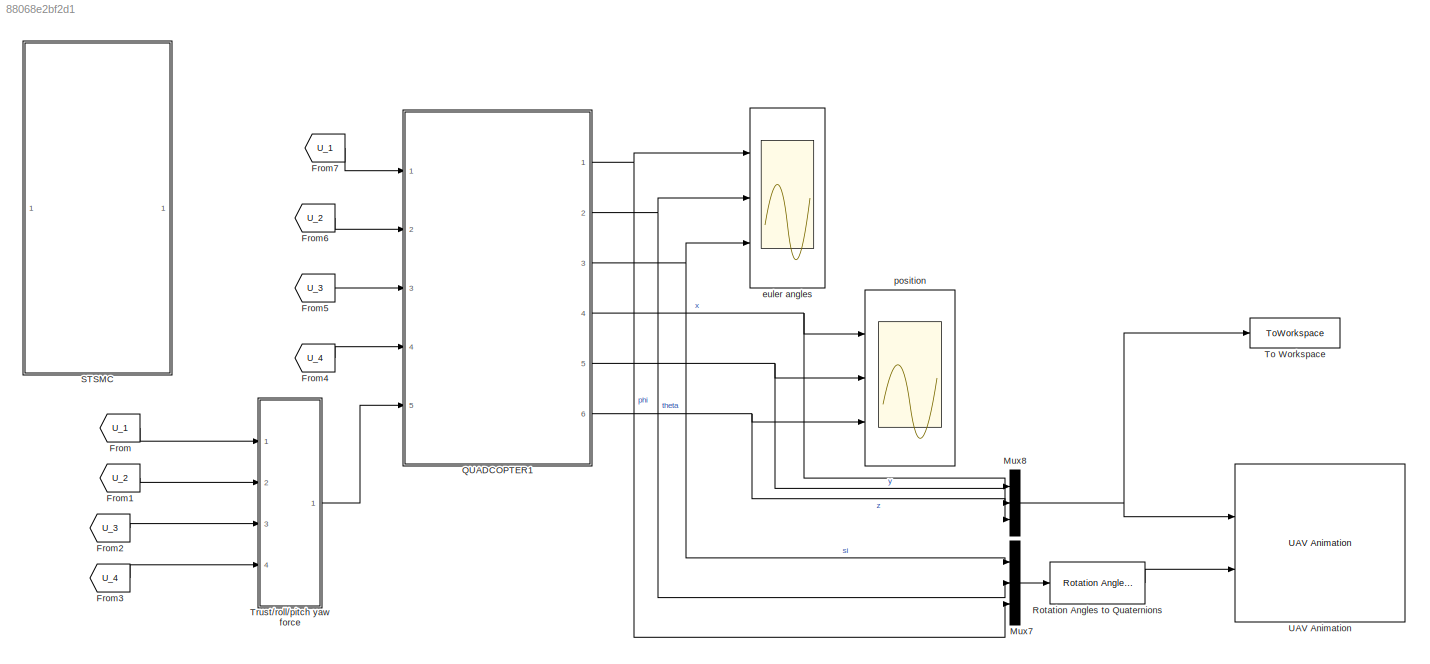
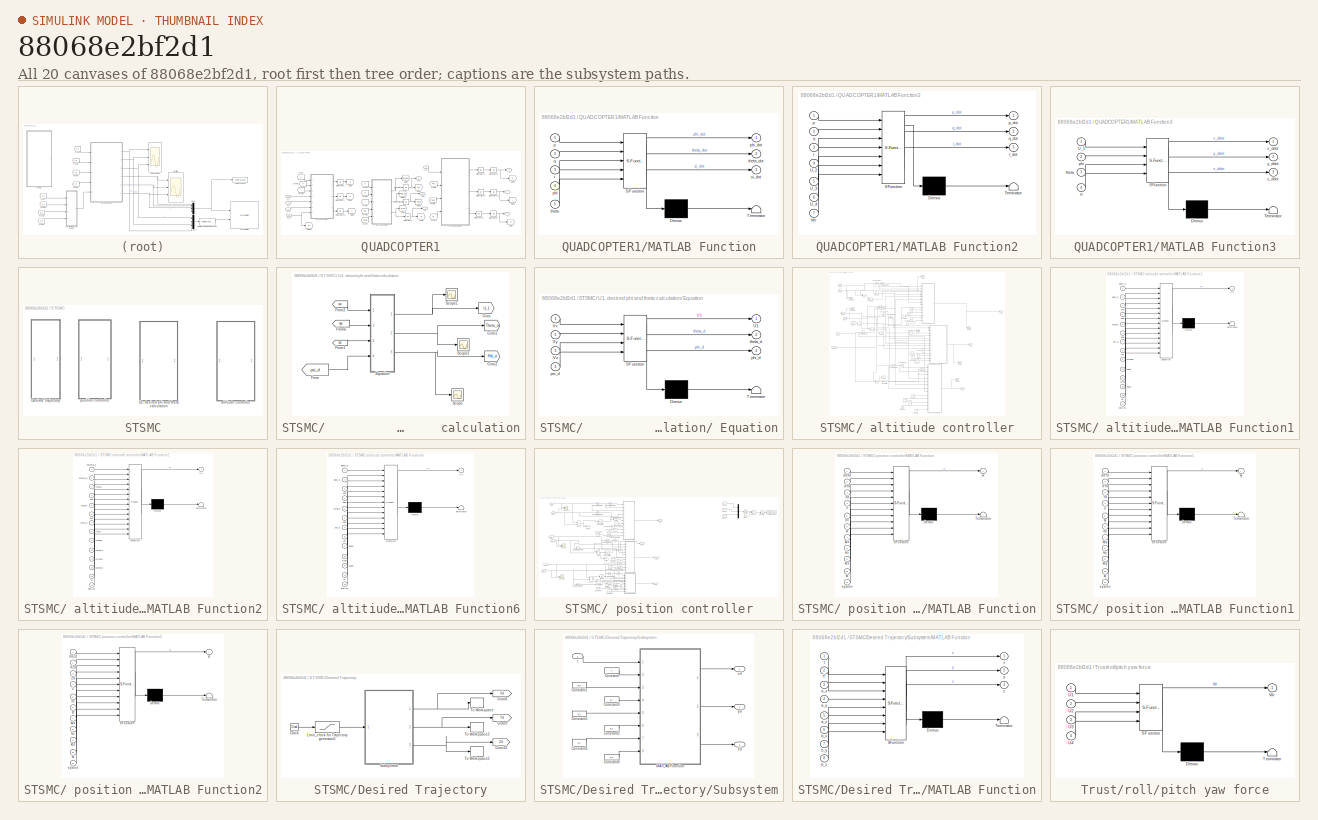
[diagram: thumbnail index - all 20 canvases of the model, root first then tree order]
MODEL slx_88068e2bf2d1
KIND model
CONFIG AbsTol = auto
CONFIG EnableMultiTasking = off
CONFIG FixedStep = auto
CONFIG InitFcn = run('constant_velocity_trajectories_variable_angle_2.m')
CONFIG MaxStep = auto
CONFIG MinStep = auto
CONFIG RelTol = 1e-3
CONFIG SampleTimeConstraint = Unconstrained
CONFIG SolverName = ode23
CONFIG StartTime = 0.0
CONFIG StopFcn = run('plot_response.m')
CONFIG StopTime = T_s
WORKSPACE source: mxarray member
WORKSPACE k1 = 828667.592561
WORKSPACE k10 = 1999999.9998
WORKSPACE k11 = 791466.214164
WORKSPACE k12 = 2711501.85139
WORKSPACE k13 = 1562664.14527
WORKSPACE k14 = 102615.336665
WORKSPACE k15 = 1.17580409761
WORKSPACE k16 = 0.102193267865
WORKSPACE k17 = 0.100015753782
WORKSPACE k18 = 0.0120332154736
WORKSPACE k19 = 1832731.57633
WORKSPACE k2 = 1.08080322166
WORKSPACE k20 = 1.1758040372
WORKSPACE k21 = 2464380.03061
WORKSPACE k22 = 64035.668317
WORKSPACE k23 = 215865.22677
WORKSPACE k24 = 1095290.61706
WORKSPACE k25 = 541886.168446
WORKSPACE k26 = 559452.633806
WORKSPACE k27 = 2923623.34482
WORKSPACE k28 = 1084341.04841
WORKSPACE k29 = 1.17580411876
WORKSPACE k3 = 3764225.72668
WORKSPACE k30 = 2999998.9242
WORKSPACE k31 = 18813308.9219
WORKSPACE k32 = 4784741.6959
WORKSPACE k33 = 196150293.659
WORKSPACE k34 = 125216769.116
WORKSPACE k35 = 9999998.9242
WORKSPACE k36 = 1.1758041248
WORKSPACE k37 = 3829.91588596
WORKSPACE k38 = 9683845.59238
WORKSPACE k39 = 71773726.6405
WORKSPACE k4 = 1104772.90021
WORKSPACE k40 = 2754807.69871
WORKSPACE k41 = 9999998.9242
WORKSPACE k42 = 29999998.9242
WORKSPACE k43 = 1999999998.92
WORKSPACE k44 = 550769.069765
WORKSPACE k5 = 1.1758040372
WORKSPACE k6 = 2511814.27977
WORKSPACE k7 = 1481585.56366
WORKSPACE k8 = 356837.383564
WORKSPACE k9 = 2398409.33781
BLOCK [From] From
  GotoTag = U_1
  TagVisibility = global
BLOCK [From] From1
  GotoTag = U_2
  TagVisibility = global
BLOCK [From] From2
  GotoTag = U_3
  TagVisibility = global
BLOCK [From] From3
  GotoTag = U_4
  TagVisibility = global
BLOCK [From] From4
  GotoTag = U_4
  TagVisibility = global
BLOCK [From] From5
  GotoTag = U_3
  TagVisibility = global
BLOCK [From] From6
  GotoTag = U_2
  TagVisibility = global
BLOCK [From] From7
  GotoTag = U_1
  TagVisibility = global
BLOCK [Mux] Mux7
  DisplayOption = bar
  Inputs = 3
  Ports = [3, 1]
BLOCK [Mux] Mux8
  DisplayOption = bar
  Inputs = 3
  Ports = [3, 1]
BLOCK [SubSystem] QUADCOPTER1
  Ports = [5, 6]
  RequestExecContextInheritance = off
BLOCK [From] QUADCOPTER1/From
  GotoTag = p
  TagVisibility = global
BLOCK [From] QUADCOPTER1/From1
  GotoTag = p
  TagVisibility = global
BLOCK [From] QUADCOPTER1/From10
  GotoTag = Si
  TagVisibility = global
BLOCK [From] QUADCOPTER1/From2
  GotoTag = q
  TagVisibility = global
BLOCK [From] QUADCOPTER1/From3
  GotoTag = q
  TagVisibility = global
BLOCK [From] QUADCOPTER1/From4
  GotoTag = r
  TagVisibility = global
BLOCK [From] QUADCOPTER1/From5
  GotoTag = r
  TagVisibility = global
BLOCK [From] QUADCOPTER1/From6
  GotoTag = PHi
  TagVisibility = global
BLOCK [From] QUADCOPTER1/From7
  GotoTag = Theta
  TagVisibility = global
BLOCK [From] QUADCOPTER1/From8
  GotoTag = PHi
  TagVisibility = global
BLOCK [From] QUADCOPTER1/From9
  GotoTag = Theta
  TagVisibility = global
BLOCK [Goto] QUADCOPTER1/Goto
  GotoTag = p
  TagVisibility = global
BLOCK [Goto] QUADCOPTER1/Goto1
  GotoTag = r
  TagVisibility = global
BLOCK [Goto] QUADCOPTER1/Goto10
  GotoTag = si_dot
  TagVisibility = global
BLOCK [Goto] QUADCOPTER1/Goto11
  GotoTag = theta_dot
  TagVisibility = global
BLOCK [Goto] QUADCOPTER1/Goto12
  GotoTag = Wr
  TagVisibility = global
BLOCK [Goto] QUADCOPTER1/Goto2
  GotoTag = q
  TagVisibility = global
BLOCK [Goto] QUADCOPTER1/Goto3
  GotoTag = PHi
  TagVisibility = global
BLOCK [Goto] QUADCOPTER1/Goto4
  GotoTag = Theta
  TagVisibility = global
BLOCK [Goto] QUADCOPTER1/Goto5
  GotoTag = Si
  TagVisibility = global
BLOCK [Goto] QUADCOPTER1/Goto6
  GotoTag = Y
  TagVisibility = global
BLOCK [Goto] QUADCOPTER1/Goto7
  GotoTag = Z
  TagVisibility = global
BLOCK [Goto] QUADCOPTER1/Goto8
  GotoTag = X
  TagVisibility = global
BLOCK [Goto] QUADCOPTER1/Goto9
  GotoTag = phi_dot
  TagVisibility = global
BLOCK [Integrator] QUADCOPTER1/Integrator1
  Ports = [1, 1]
  WrapState = on
  WrappedStateLowerValue = -pi/3
  WrappedStateUpperValue = pi/3
BLOCK [Integrator] QUADCOPTER1/Integrator14
  Ports = [1, 1]
BLOCK [Integrator] QUADCOPTER1/Integrator15
  Ports = [1, 1]
BLOCK [Integrator] QUADCOPTER1/Integrator16
  Ports = [1, 1]
BLOCK [Integrator] QUADCOPTER1/Integrator17
  Ports = [1, 1]
  WrappedStateLowerValue = -pi/3
  WrappedStateUpperValue = pi/3
BLOCK [Integrator] QUADCOPTER1/Integrator2
  Ports = [1, 1]
  WrapState = on
  WrappedStateLowerValue = -pi/3
  WrappedStateUpperValue = pi/3
BLOCK [Integrator] QUADCOPTER1/Integrator20
  Ports = [1, 1]
  WrappedStateLowerValue = -pi/3
  WrappedStateUpperValue = pi/3
BLOCK [Integrator] QUADCOPTER1/Integrator21
  Ports = [1, 1]
  UpperSaturationLimit = 0
BLOCK [Integrator] QUADCOPTER1/Integrator22
  Ports = [1, 1]
BLOCK [Integrator] QUADCOPTER1/Integrator23
  Ports = [1, 1]
BLOCK [Integrator] QUADCOPTER1/Integrator3
  Ports = [1, 1]
  WrapState = on
BLOCK [Integrator] QUADCOPTER1/Integrator8
  Ports = [1, 1]
  WrappedStateLowerValue = -pi/3
  WrappedStateUpperValue = pi/3
BLOCK [SubSystem] QUADCOPTER1/MATLAB Function
  ErrorFcn = Stateflow.Translate.translate
  PermitHierarchicalResolution = ExplicitOnly
  Ports = [5, 3]
  RequestExecContextInheritance = off
  SFBlockType = MATLAB Function
  TreatAsAtomicUnit = on
BLOCK [Demux] QUADCOPTER1/MATLAB Function/ Demux 
  Outputs = 1
  Ports = [1, 1]
BLOCK [S-Function] QUADCOPTER1/MATLAB Function/ SFunction 
  EnableBusSupport = on
  FunctionName = sf_sfun
  PortCounts = [5 4]
  Ports = [5, 4]
  SFcnIsStateOwnerBlock = off
  SFunctionDeploymentMode = off
  Tag = Stateflow S-Function 3
BLOCK [Terminator] QUADCOPTER1/MATLAB Function/ Terminator 
BLOCK [Inport] QUADCOPTER1/MATLAB Function/p
BLOCK [Inport] QUADCOPTER1/MATLAB Function/phi
  Port = 4
BLOCK [Outport] QUADCOPTER1/MATLAB Function/phi_dot
BLOCK [Inport] QUADCOPTER1/MATLAB Function/q
  Port = 2
BLOCK [Inport] QUADCOPTER1/MATLAB Function/r
  Port = 3
BLOCK [Outport] QUADCOPTER1/MATLAB Function/si_dot
  Port = 3
BLOCK [Inport] QUADCOPTER1/MATLAB Function/theta
  Port = 5
BLOCK [Outport] QUADCOPTER1/MATLAB Function/theta_dot
  Port = 2
BLOCK [SubSystem] QUADCOPTER1/MATLAB Function2
  ErrorFcn = Stateflow.Translate.translate
  PermitHierarchicalResolution = ExplicitOnly
  Ports = [7, 3]
  RequestExecContextInheritance = off
  SFBlockType = MATLAB Function
  TreatAsAtomicUnit = on
BLOCK [Demux] QUADCOPTER1/MATLAB Function2/ Demux 
  Outputs = 1
  Ports = [1, 1]
BLOCK [S-Function] QUADCOPTER1/MATLAB Function2/ SFunction 
  EnableBusSupport = on
  FunctionName = sf_sfun
  PortCounts = [7 4]
  Ports = [7, 4]
  SFcnIsStateOwnerBlock = off
  SFunctionDeploymentMode = off
  Tag = Stateflow S-Function 4
BLOCK [Terminator] QUADCOPTER1/MATLAB Function2/ Terminator 
BLOCK [Inport] QUADCOPTER1/MATLAB Function2/U_2
  Port = 4
BLOCK [Inport] QUADCOPTER1/MATLAB Function2/U_3
  Port = 5
BLOCK [Inport] QUADCOPTER1/MATLAB Function2/U_4
  Port = 6
BLOCK [Inport] QUADCOPTER1/MATLAB Function2/Wr
  Port = 7
BLOCK [Inport] QUADCOPTER1/MATLAB Function2/p
BLOCK [Outport] QUADCOPTER1/MATLAB Function2/p_dot
BLOCK [Inport] QUADCOPTER1/MATLAB Function2/q
  Port = 2
BLOCK [Outport] QUADCOPTER1/MATLAB Function2/q_dot
  Port = 2
BLOCK [Inport] QUADCOPTER1/MATLAB Function2/r
  Port = 3
BLOCK [Outport] QUADCOPTER1/MATLAB Function2/r_dot
  Port = 3
BLOCK [SubSystem] QUADCOPTER1/MATLAB Function3
  ErrorFcn = Stateflow.Translate.translate
  PermitHierarchicalResolution = ExplicitOnly
  Ports = [4, 3]
  RequestExecContextInheritance = off
  SFBlockType = MATLAB Function
  TreatAsAtomicUnit = on
BLOCK [Demux] QUADCOPTER1/MATLAB Function3/ Demux 
  Outputs = 1
  Ports = [1, 1]
BLOCK [S-Function] QUADCOPTER1/MATLAB Function3/ SFunction 
  EnableBusSupport = on
  FunctionName = sf_sfun
  PortCounts = [4 4]
  Ports = [4, 4]
  SFcnIsStateOwnerBlock = off
  SFunctionDeploymentMode = off
  Tag = Stateflow S-Function 5
BLOCK [Terminator] QUADCOPTER1/MATLAB Function3/ Terminator 
BLOCK [Inport] QUADCOPTER1/MATLAB Function3/U_1
BLOCK [Inport] QUADCOPTER1/MATLAB Function3/phi
  Port = 2
BLOCK [Inport] QUADCOPTER1/MATLAB Function3/si
  Port = 4
BLOCK [Inport] QUADCOPTER1/MATLAB Function3/theta
  Port = 3
BLOCK [Outport] QUADCOPTER1/MATLAB Function3/x_ddot
BLOCK [Outport] QUADCOPTER1/MATLAB Function3/y_ddot
  Port = 2
BLOCK [Outport] QUADCOPTER1/MATLAB Function3/z_ddot
  Port = 3
BLOCK [Outport] QUADCOPTER1/Phi
BLOCK [Outport] QUADCOPTER1/Si
  Port = 3
BLOCK [Outport] QUADCOPTER1/Theta
  Port = 2
BLOCK [Inport] QUADCOPTER1/U_1
BLOCK [Inport] QUADCOPTER1/U_2
  Port = 2
BLOCK [Inport] QUADCOPTER1/U_3
  Port = 3
BLOCK [Inport] QUADCOPTER1/U_4
  Port = 4
BLOCK [Inport] QUADCOPTER1/Wr1
  Port = 5
BLOCK [Outport] QUADCOPTER1/x
  Port = 4
BLOCK [Outport] QUADCOPTER1/y
  Port = 5
BLOCK [Outport] QUADCOPTER1/z
  Port = 6
BLOCK [Reference] Rotation Angles to Quaternions  REF=sharedtransform/Rotation Angles to Quaternions
  AttributesFormatString = Rotation Order: %<rotationOrder>
  Ports = [1, 1]
  SourceBlock = sharedtransform/Rotation Angles to Quaternions
  SourceProductBaseCode = AE,PW,DR,MT,UV,VE
  SourceType = Ang2Quat
BLOCK [SubSystem] STSMC
  Ports = []
  RequestExecContextInheritance = off
BLOCK [SubSystem] STSMC/             U1, desired phi and theta         calculation
  Ports = []
  RequestExecContextInheritance = off
BLOCK [SubSystem] STSMC/             U1, desired phi and theta         calculation/ Equation
  ErrorFcn = Stateflow.Translate.translate
  PermitHierarchicalResolution = ExplicitOnly
  Ports = [4, 3]
  RequestExecContextInheritance = off
  SFBlockType = MATLAB Function
  TreatAsAtomicUnit = on
BLOCK [Demux] STSMC/             U1, desired phi and theta         calculation/ Equation/ Demux 
  Outputs = 1
  Ports = [1, 1]
BLOCK [S-Function] STSMC/             U1, desired phi and theta         calculation/ Equation/ SFunction 
  EnableBusSupport = on
  FunctionName = sf_sfun
  PortCounts = [4 4]
  Ports = [4, 4]
  SFcnIsStateOwnerBlock = off
  SFunctionDeploymentMode = off
  Tag = Stateflow S-Function 7
BLOCK [Terminator] STSMC/             U1, desired phi and theta         calculation/ Equation/ Terminator 
BLOCK [Outport] STSMC/             U1, desired phi and theta         calculation/ Equation/U1
BLOCK [Inport] STSMC/             U1, desired phi and theta         calculation/ Equation/Vx
BLOCK [Inport] STSMC/             U1, desired phi and theta         calculation/ Equation/Vy
  Port = 2
BLOCK [Inport] STSMC/             U1, desired phi and theta         calculation/ Equation/Vz
  Port = 3
BLOCK [Outport] STSMC/             U1, desired phi and theta         calculation/ Equation/phi_d
  Port = 3
BLOCK [Inport] STSMC/             U1, desired phi and theta         calculation/ Equation/psi_d
  Port = 4
BLOCK [Outport] STSMC/             U1, desired phi and theta         calculation/ Equation/theta_d
  Port = 2
BLOCK [From] STSMC/             U1, desired phi and theta         calculation/From
  GotoTag = psi_d
BLOCK [From] STSMC/             U1, desired phi and theta         calculation/From1
  GotoTag = vzz
  TagVisibility = global
BLOCK [From] STSMC/             U1, desired phi and theta         calculation/From2
  GotoTag = vxx
  TagVisibility = global
BLOCK [From] STSMC/             U1, desired phi and theta         calculation/From6
  GotoTag = vyy
  TagVisibility = global
BLOCK [Goto] STSMC/             U1, desired phi and theta         calculation/Goto
  GotoTag = U_1
  TagVisibility = global
BLOCK [Goto] STSMC/             U1, desired phi and theta         calculation/Goto1
  GotoTag = Theta_d
  TagVisibility = global
BLOCK [Goto] STSMC/             U1, desired phi and theta         calculation/Goto2
  GotoTag = PHi_d
  TagVisibility = global
BLOCK [Scope] STSMC/             U1, desired phi and theta         calculation/Scope
  Floating = off
  NumInputPorts = 1
  Ports = [1]
  ScopeSpecificationString = Simulink.scopes.TimeScopeBlockCfg('CurrentConfiguration', extmgr.ConfigurationSet(extmgr.Configuration('Core','General UI',true),extmgr.Configuration('Core','Source UI',true),extmgr.Configuration('Sources','WiredSimulink',true,'DataLoggingVariableName','ScopeData5'),extmgr.Configuration('Visuals','Time Domain',true,'SerializedDisplays',{struct('MinYLimReal','-0.4656','MaxYLimReal','0.46476','YLabe...<+1370ch>
BLOCK [Scope] STSMC/             U1, desired phi and theta         calculation/Scope1
  Floating = off
  NumInputPorts = 1
  Ports = [1]
  ScopeSpecificationString = Simulink.scopes.TimeScopeBlockCfg('CurrentConfiguration', extmgr.ConfigurationSet(extmgr.Configuration('Core','General UI',true),extmgr.Configuration('Core','Source UI',true),extmgr.Configuration('Sources','WiredSimulink',true,'DataLoggingVariableName','ScopeData6'),extmgr.Configuration('Visuals','Time Domain',true,'SerializedDisplays',{struct('MinYLimReal','9.13021','MaxYLimReal','16.43649','YLab...<+1373ch>
BLOCK [Scope] STSMC/             U1, desired phi and theta         calculation/Scope2
  Floating = off
  NumInputPorts = 1
  Ports = [1]
  ScopeSpecificationString = Simulink.scopes.TimeScopeBlockCfg('CurrentConfiguration', extmgr.ConfigurationSet(extmgr.Configuration('Core','General UI',true),extmgr.Configuration('Core','Source UI',true),extmgr.Configuration('Sources','WiredSimulink',true,'DataLoggingVariableName','ScopeData7'),extmgr.Configuration('Visuals','Time Domain',true,'SerializedDisplays',{struct('MinYLimReal','-0.48372','MaxYLimReal','0.49133','YLab...<+1376ch>
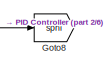
[diagram: STSMC/ altitiude controller - part 1/6, top center region]
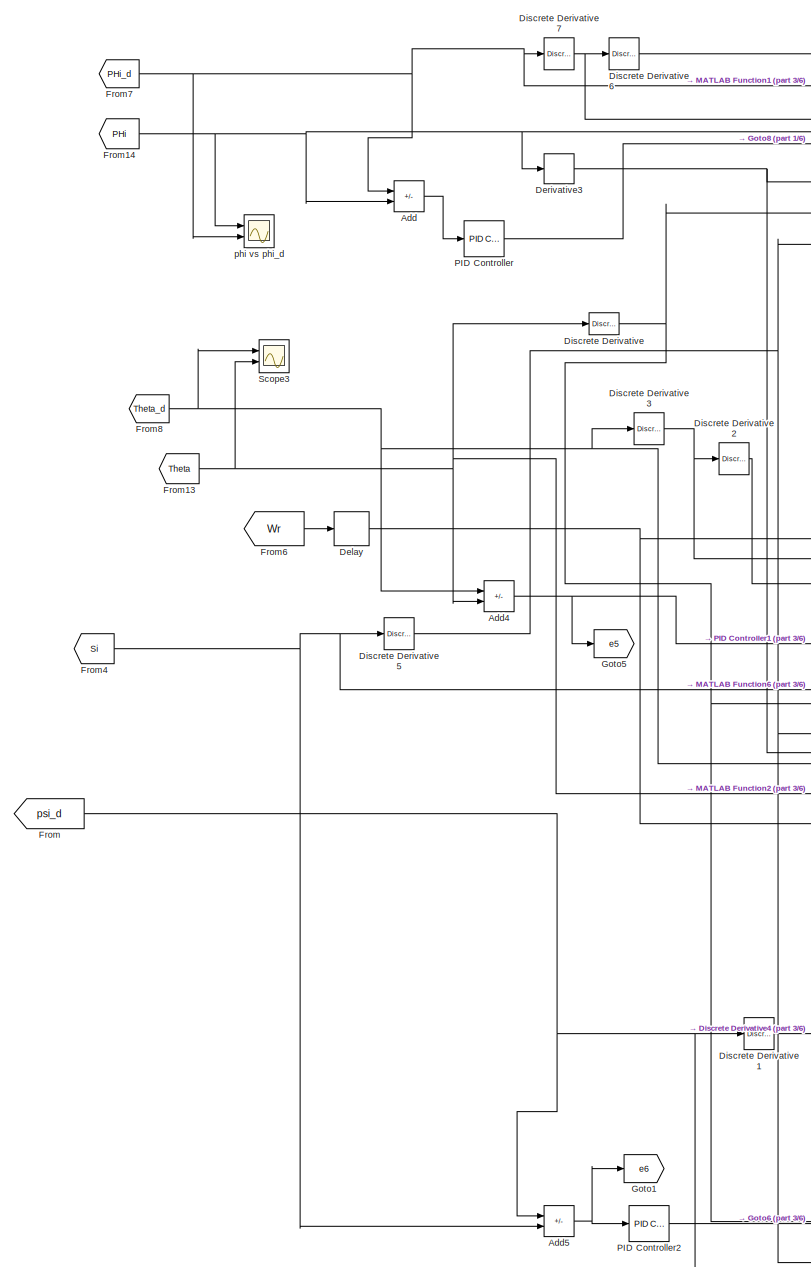
[diagram: STSMC/ altitiude controller - part 2/6, left side, full height]
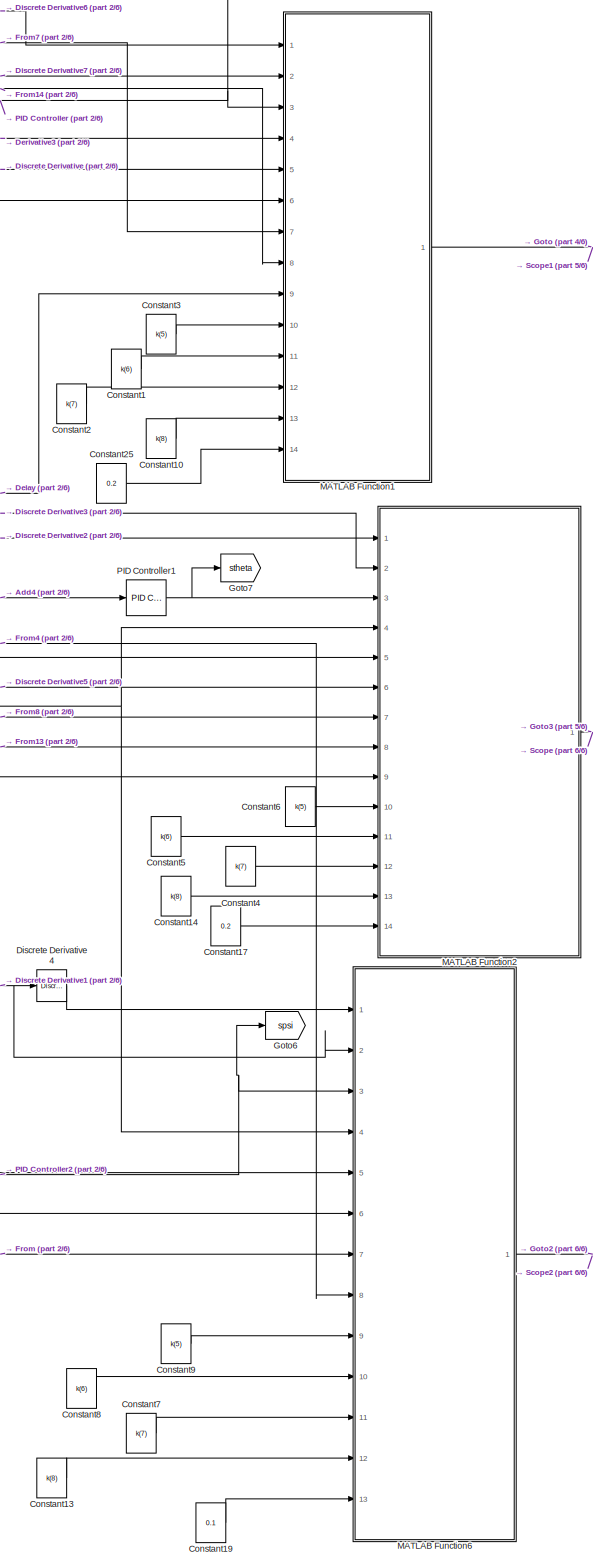
[diagram: STSMC/ altitiude controller - part 3/6, center side, full height]
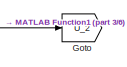
[diagram: STSMC/ altitiude controller - part 4/6, top right region]
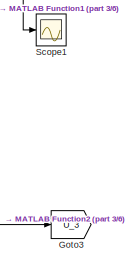
[diagram: STSMC/ altitiude controller - part 5/6, middle right region]
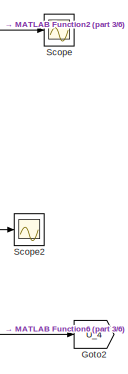
[diagram: STSMC/ altitiude controller - part 6/6, bottom right region]
BLOCK [SubSystem] STSMC/ altitiude controller
  InitFcn = k = [3.1694    4.9704    4.6508    3.9758    2.6119    4.2532    1.3372    4.2753]
  Ports = []
  RequestExecContextInheritance = off
BLOCK [Sum] STSMC/ altitiude controller/Add
  IconShape = rectangular
  Inputs = +-
  Ports = [2, 1]
BLOCK [Sum] STSMC/ altitiude controller/Add4
  IconShape = rectangular
  Inputs = +-
  Ports = [2, 1]
BLOCK [Sum] STSMC/ altitiude controller/Add5
  IconShape = rectangular
  Inputs = +-
  Ports = [2, 1]
BLOCK [Constant] STSMC/ altitiude controller/Constant1
  Value = k(6)
  VectorParams1D = off
BLOCK [Constant] STSMC/ altitiude controller/Constant10
  Value = k(8)
BLOCK [Constant] STSMC/ altitiude controller/Constant13
  Value = k(8)
BLOCK [Constant] STSMC/ altitiude controller/Constant14
  Value = k(8)
BLOCK [Constant] STSMC/ altitiude controller/Constant17
  Value = 0.2
BLOCK [Constant] STSMC/ altitiude controller/Constant19
  Value = 0.1
BLOCK [Constant] STSMC/ altitiude controller/Constant2
  Value = k(7)
BLOCK [Constant] STSMC/ altitiude controller/Constant25
  Value = 0.2
BLOCK [Constant] STSMC/ altitiude controller/Constant3
  Value = k(5)
BLOCK [Constant] STSMC/ altitiude controller/Constant4
  Value = k(7)
BLOCK [Constant] STSMC/ altitiude controller/Constant5
  Value = k(6)
BLOCK [Constant] STSMC/ altitiude controller/Constant6
  Value = k(5)
BLOCK [Constant] STSMC/ altitiude controller/Constant7
  Value = k(7)
BLOCK [Constant] STSMC/ altitiude controller/Constant8
  Value = k(6)
BLOCK [Constant] STSMC/ altitiude controller/Constant9
  Value = k(5)
BLOCK [Delay] STSMC/ altitiude controller/Delay
  DelayLength = 1
  InputPortMap = u0
  Ports = [1, 1]
  SampleTime = 0.1
BLOCK [Derivative] STSMC/ altitiude controller/Derivative3
BLOCK [Reference] STSMC/ altitiude controller/Discrete Derivative  REF=simulink/Discrete/Discrete Derivative
  Ports = [1, 1]
  SourceBlock = simulink/Discrete/Discrete Derivative
  SourceProductBaseCode = SL
  SourceType = Discrete Derivative
BLOCK [Reference] STSMC/ altitiude controller/Discrete Derivative1  REF=simulink/Discrete/Discrete Derivative
  Ports = [1, 1]
  SourceBlock = simulink/Discrete/Discrete Derivative
  SourceProductBaseCode = SL
  SourceType = Discrete Derivative
BLOCK [Reference] STSMC/ altitiude controller/Discrete Derivative2  REF=simulink/Discrete/Discrete Derivative
  Ports = [1, 1]
  SourceBlock = simulink/Discrete/Discrete Derivative
  SourceProductBaseCode = SL
  SourceType = Discrete Derivative
BLOCK [Reference] STSMC/ altitiude controller/Discrete Derivative3  REF=simulink/Discrete/Discrete Derivative
  Ports = [1, 1]
  SourceBlock = simulink/Discrete/Discrete Derivative
  SourceProductBaseCode = SL
  SourceType = Discrete Derivative
BLOCK [Reference] STSMC/ altitiude controller/Discrete Derivative4  REF=simulink/Discrete/Discrete Derivative
  Ports = [1, 1]
  SourceBlock = simulink/Discrete/Discrete Derivative
  SourceProductBaseCode = SL
  SourceType = Discrete Derivative
BLOCK [Reference] STSMC/ altitiude controller/Discrete Derivative5  REF=simulink/Discrete/Discrete Derivative
  Ports = [1, 1]
  SourceBlock = simulink/Discrete/Discrete Derivative
  SourceProductBaseCode = SL
  SourceType = Discrete Derivative
BLOCK [Reference] STSMC/ altitiude controller/Discrete Derivative6  REF=simulink/Discrete/Discrete Derivative
  Ports = [1, 1]
  SourceBlock = simulink/Discrete/Discrete Derivative
  SourceProductBaseCode = SL
  SourceType = Discrete Derivative
BLOCK [Reference] STSMC/ altitiude controller/Discrete Derivative7  REF=simulink/Discrete/Discrete Derivative
  Ports = [1, 1]
  SourceBlock = simulink/Discrete/Discrete Derivative
  SourceProductBaseCode = SL
  SourceType = Discrete Derivative
BLOCK [From] STSMC/ altitiude controller/From
  GotoTag = psi_d
BLOCK [From] STSMC/ altitiude controller/From13
  GotoTag = Theta
  TagVisibility = global
BLOCK [From] STSMC/ altitiude controller/From14
  GotoTag = PHi
  TagVisibility = global
BLOCK [From] STSMC/ altitiude controller/From4
  GotoTag = Si
  TagVisibility = global
BLOCK [From] STSMC/ altitiude controller/From6
  GotoTag = Wr
  TagVisibility = global
BLOCK [From] STSMC/ altitiude controller/From7
  GotoTag = PHi_d
  TagVisibility = global
BLOCK [From] STSMC/ altitiude controller/From8
  GotoTag = Theta_d
  TagVisibility = global
BLOCK [Goto] STSMC/ altitiude controller/Goto
  GotoTag = U_2
  TagVisibility = global
BLOCK [Goto] STSMC/ altitiude controller/Goto1
  GotoTag = e6
  TagVisibility = global
BLOCK [Goto] STSMC/ altitiude controller/Goto2
  GotoTag = U_4
  TagVisibility = global
BLOCK [Goto] STSMC/ altitiude controller/Goto3
  GotoTag = U_3
  TagVisibility = global
BLOCK [Goto] STSMC/ altitiude controller/Goto5
  GotoTag = e5
  TagVisibility = global
BLOCK [Goto] STSMC/ altitiude controller/Goto6
  GotoTag = spsi
  TagVisibility = global
BLOCK [Goto] STSMC/ altitiude controller/Goto7
  GotoTag = stheta
  TagVisibility = global
BLOCK [Goto] STSMC/ altitiude controller/Goto8
  GotoTag = sphi
  TagVisibility = global
BLOCK [SubSystem] STSMC/ altitiude controller/MATLAB Function1
  ErrorFcn = Stateflow.Translate.translate
  PermitHierarchicalResolution = ExplicitOnly
  Ports = [14, 1]
  RequestExecContextInheritance = off
  SFBlockType = MATLAB Function
  TreatAsAtomicUnit = on
BLOCK [Demux] STSMC/ altitiude controller/MATLAB Function1/ Demux 
  Outputs = 1
  Ports = [1, 1]
BLOCK [S-Function] STSMC/ altitiude controller/MATLAB Function1/ SFunction 
  EnableBusSupport = on
  FunctionName = sf_sfun
  PortCounts = [14 2]
  Ports = [14, 2]
  SFcnIsStateOwnerBlock = off
  SFunctionDeploymentMode = off
  Tag = Stateflow S-Function 19
BLOCK [Terminator] STSMC/ altitiude controller/MATLAB Function1/ Terminator 
BLOCK [Outport] STSMC/ altitiude controller/MATLAB Function1/U2
BLOCK [Inport] STSMC/ altitiude controller/MATLAB Function1/ddphi_d
BLOCK [Inport] STSMC/ altitiude controller/MATLAB Function1/dphi
  Port = 4
BLOCK [Inport] STSMC/ altitiude controller/MATLAB Function1/dphi_d
  Port = 2
BLOCK [Inport] STSMC/ altitiude controller/MATLAB Function1/dpsi
  Port = 6
BLOCK [Inport] STSMC/ altitiude controller/MATLAB Function1/dtheta
  Port = 5
BLOCK [Inport] STSMC/ altitiude controller/MATLAB Function1/epsilon
  Port = 14
BLOCK [Inport] STSMC/ altitiude controller/MATLAB Function1/kdphi
  Port = 12
BLOCK [Inport] STSMC/ altitiude controller/MATLAB Function1/kiphi
  Port = 11
BLOCK [Inport] STSMC/ altitiude controller/MATLAB Function1/kp
  Port = 13
BLOCK [Inport] STSMC/ altitiude controller/MATLAB Function1/kpphi
  Port = 10
BLOCK [Inport] STSMC/ altitiude controller/MATLAB Function1/omegar
  Port = 9
BLOCK [Inport] STSMC/ altitiude controller/MATLAB Function1/phi
  Port = 8
BLOCK [Inport] STSMC/ altitiude controller/MATLAB Function1/phi_d
  Port = 7
BLOCK [Inport] STSMC/ altitiude controller/MATLAB Function1/sphi
  Port = 3
BLOCK [SubSystem] STSMC/ altitiude controller/MATLAB Function2
  ErrorFcn = Stateflow.Translate.translate
  PermitHierarchicalResolution = ExplicitOnly
  Ports = [14, 1]
  RequestExecContextInheritance = off
  SFBlockType = MATLAB Function
  TreatAsAtomicUnit = on
BLOCK [Demux] STSMC/ altitiude controller/MATLAB Function2/ Demux 
  Outputs = 1
  Ports = [1, 1]
BLOCK [S-Function] STSMC/ altitiude controller/MATLAB Function2/ SFunction 
  EnableBusSupport = on
  FunctionName = sf_sfun
  PortCounts = [14 2]
  Ports = [14, 2]
  SFcnIsStateOwnerBlock = off
  SFunctionDeploymentMode = off
  Tag = Stateflow S-Function 20
BLOCK [Terminator] STSMC/ altitiude controller/MATLAB Function2/ Terminator 
BLOCK [Outport] STSMC/ altitiude controller/MATLAB Function2/U3
BLOCK [Inport] STSMC/ altitiude controller/MATLAB Function2/ddtheta_d
BLOCK [Inport] STSMC/ altitiude controller/MATLAB Function2/dphi
  Port = 4
BLOCK [Inport] STSMC/ altitiude controller/MATLAB Function2/dpsi
  Port = 6
BLOCK [Inport] STSMC/ altitiude controller/MATLAB Function2/dtheta
  Port = 5
BLOCK [Inport] STSMC/ altitiude controller/MATLAB Function2/dtheta_d
  Port = 2
BLOCK [Inport] STSMC/ altitiude controller/MATLAB Function2/epsilon
  Port = 14
BLOCK [Inport] STSMC/ altitiude controller/MATLAB Function2/kdtheta
  Port = 12
BLOCK [Inport] STSMC/ altitiude controller/MATLAB Function2/kitheta
  Port = 11
BLOCK [Inport] STSMC/ altitiude controller/MATLAB Function2/kptheta
  Port = 10
BLOCK [Inport] STSMC/ altitiude controller/MATLAB Function2/kt
  Port = 13
BLOCK [Inport] STSMC/ altitiude controller/MATLAB Function2/omegar
  Port = 9
BLOCK [Inport] STSMC/ altitiude controller/MATLAB Function2/stheta
  Port = 3
BLOCK [Inport] STSMC/ altitiude controller/MATLAB Function2/theta
  Port = 8
BLOCK [Inport] STSMC/ altitiude controller/MATLAB Function2/theta_d
  Port = 7
BLOCK [SubSystem] STSMC/ altitiude controller/MATLAB Function6
  ErrorFcn = Stateflow.Translate.translate
  PermitHierarchicalResolution = ExplicitOnly
  Ports = [13, 1]
  RequestExecContextInheritance = off
  SFBlockType = MATLAB Function
  TreatAsAtomicUnit = on
BLOCK [Demux] STSMC/ altitiude controller/MATLAB Function6/ Demux 
  Outputs = 1
  Ports = [1, 1]
BLOCK [S-Function] STSMC/ altitiude controller/MATLAB Function6/ SFunction 
  EnableBusSupport = on
  FunctionName = sf_sfun
  PortCounts = [13 2]
  Ports = [13, 2]
  SFcnIsStateOwnerBlock = off
  SFunctionDeploymentMode = off
  Tag = Stateflow S-Function 21
BLOCK [Terminator] STSMC/ altitiude controller/MATLAB Function6/ Terminator 
BLOCK [Outport] STSMC/ altitiude controller/MATLAB Function6/U4
BLOCK [Inport] STSMC/ altitiude controller/MATLAB Function6/ddpsi_d
BLOCK [Inport] STSMC/ altitiude controller/MATLAB Function6/dphi
  Port = 4
BLOCK [Inport] STSMC/ altitiude controller/MATLAB Function6/dpsi
  Port = 6
BLOCK [Inport] STSMC/ altitiude controller/MATLAB Function6/dpsi_d
  Port = 2
BLOCK [Inport] STSMC/ altitiude controller/MATLAB Function6/dtheta
  Port = 5
BLOCK [Inport] STSMC/ altitiude controller/MATLAB Function6/epsilon
  Port = 13
BLOCK [Inport] STSMC/ altitiude controller/MATLAB Function6/kdpsi
  Port = 11
BLOCK [Inport] STSMC/ altitiude controller/MATLAB Function6/kipsi
  Port = 10
BLOCK [Inport] STSMC/ altitiude controller/MATLAB Function6/kppsi
  Port = 9
BLOCK [Inport] STSMC/ altitiude controller/MATLAB Function6/ks
  Port = 12
BLOCK [Inport] STSMC/ altitiude controller/MATLAB Function6/psi
  Port = 8
BLOCK [Inport] STSMC/ altitiude controller/MATLAB Function6/psi_d
  Port = 7
BLOCK [Inport] STSMC/ altitiude controller/MATLAB Function6/spsi
  Port = 3
BLOCK [Reference] STSMC/ altitiude controller/PID Controller  REF=pid_lib/PID Controller
  Ports = [1, 1]
  SourceBlock = pid_lib/PID Controller
  SourceProductBaseCode = SL
  SourceType = PID 1dof
BLOCK [Reference] STSMC/ altitiude controller/PID Controller1  REF=pid_lib/PID Controller
  Ports = [1, 1]
  SourceBlock = pid_lib/PID Controller
  SourceProductBaseCode = SL
  SourceType = PID 1dof
BLOCK [Reference] STSMC/ altitiude controller/PID Controller2  REF=pid_lib/PID Controller
  Ports = [1, 1]
  SourceBlock = pid_lib/PID Controller
  SourceProductBaseCode = SL
  SourceType = PID 1dof
BLOCK [Scope] STSMC/ altitiude controller/Scope
  Floating = off
  NumInputPorts = 1
  Ports = [1]
  ScopeSpecificationString = Simulink.scopes.TimeScopeBlockCfg('CurrentConfiguration', extmgr.ConfigurationSet(extmgr.Configuration('Core','General UI',true),extmgr.Configuration('Core','Source UI',true),extmgr.Configuration('Sources','WiredSimulink',true,'DataLoggingVariableName','ScopeData8'),extmgr.Configuration('Visuals','Time Domain',true,'SerializedDisplays',{struct('MinYLimReal','-5.86371','MaxYLimReal','5.72391','YLab...<+1375ch>
BLOCK [Scope] STSMC/ altitiude controller/Scope1
  Floating = off
  NumInputPorts = 1
  Ports = [1]
  ScopeSpecificationString = Simulink.scopes.TimeScopeBlockCfg('CurrentConfiguration', extmgr.ConfigurationSet(extmgr.Configuration('Core','General UI',true),extmgr.Configuration('Core','Source UI',true),extmgr.Configuration('Sources','WiredSimulink',true,'DataLoggingVariableName','ScopeData9'),extmgr.Configuration('Visuals','Time Domain',true,'SerializedDisplays',{struct('MinYLimReal','-5.38808','MaxYLimReal','5.26059','YLab...<+1375ch>
BLOCK [Scope] STSMC/ altitiude controller/Scope2
  Floating = off
  NumInputPorts = 1
  Ports = [1]
  ScopeSpecificationString = Simulink.scopes.TimeScopeBlockCfg('CurrentConfiguration', extmgr.ConfigurationSet(extmgr.Configuration('Core','General UI',true),extmgr.Configuration('Core','Source UI',true),extmgr.Configuration('Sources','WiredSimulink',true,'DataLoggingVariableName','ScopeData10'),extmgr.Configuration('Visuals','Time Domain',true,'SerializedDisplays',{struct('MinYLimReal','-4.71584','MaxYLimReal','4.71169','YLa...<+1376ch>
BLOCK [Scope] STSMC/ altitiude controller/Scope3
  Floating = off
  NumInputPorts = 2
  Ports = [2]
  ScopeSpecificationString = Simulink.scopes.TimeScopeBlockCfg('CurrentConfiguration', extmgr.ConfigurationSet(extmgr.Configuration('Core','General UI',true),extmgr.Configuration('Core','Source UI',true),extmgr.Configuration('Sources','WiredSimulink',true,'DataLoggingVariableName','ScopeData1'),extmgr.Configuration('Visuals','Time Domain',true,'SerializedDisplays',{struct('MinYLimReal','-0.13312','MaxYLimReal','0.15095','YLab...<+1382ch>
BLOCK [Scope] STSMC/ altitiude controller/phi vs phi_d
  Floating = off
  NumInputPorts = 2
  Ports = [2]
  ScopeSpecificationString = Simulink.scopes.TimeScopeBlockCfg('CurrentConfiguration', extmgr.ConfigurationSet(extmgr.Configuration('Core','General UI',true),extmgr.Configuration('Core','Source UI',true),extmgr.Configuration('Sources','WiredSimulink',true,'DataLoggingVariableName','ScopeData2'),extmgr.Configuration('Visuals','Time Domain',true,'SerializedDisplays',{struct('MinYLimReal','-0.49085','MaxYLimReal','0.3327','YLabe...<+1450ch>
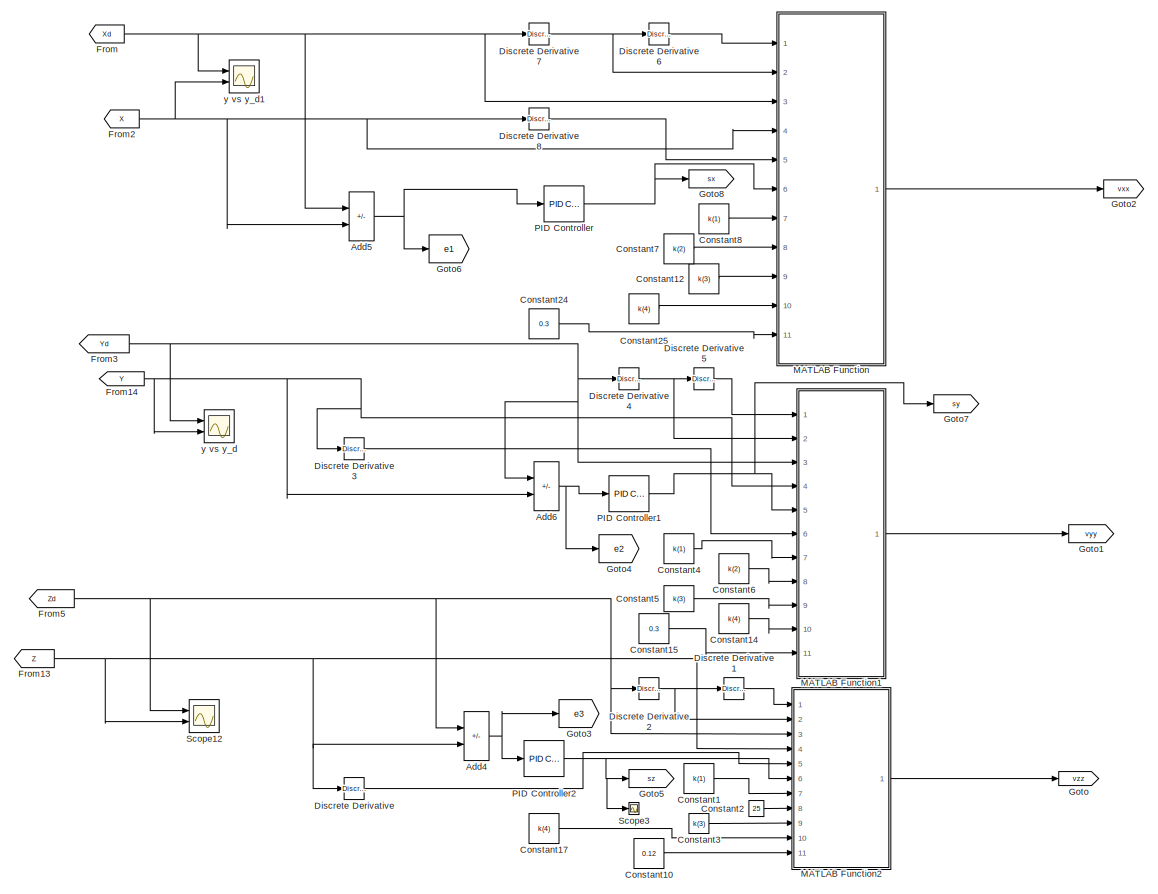
[diagram: STSMC/ position controller - part 1/2, left side, full height]
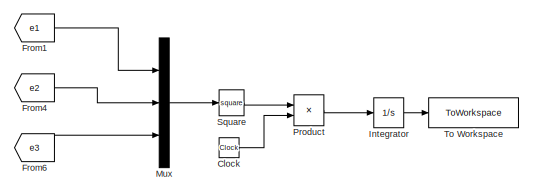
[diagram: STSMC/ position controller - part 2/2, top right region]
BLOCK [SubSystem] STSMC/ position controller
  Ports = []
  RequestExecContextInheritance = off
BLOCK [Sum] STSMC/ position controller/Add4
  IconShape = rectangular
  Inputs = +-
  Ports = [2, 1]
BLOCK [Sum] STSMC/ position controller/Add5
  IconShape = rectangular
  Inputs = +-
  Ports = [2, 1]
BLOCK [Sum] STSMC/ position controller/Add6
  IconShape = rectangular
  Inputs = +-
  Ports = [2, 1]
BLOCK [Clock] STSMC/ position controller/Clock
BLOCK [Constant] STSMC/ position controller/Constant1
  Value = k(1)
BLOCK [Constant] STSMC/ position controller/Constant10
  Value = 0.12
BLOCK [Constant] STSMC/ position controller/Constant12
  Value = k(3)
BLOCK [Constant] STSMC/ position controller/Constant14
  Value = k(4)
BLOCK [Constant] STSMC/ position controller/Constant15
  Value = 0.3
BLOCK [Constant] STSMC/ position controller/Constant17
  Value = k(4)
BLOCK [Constant] STSMC/ position controller/Constant2
  Value = 25
BLOCK [Constant] STSMC/ position controller/Constant24
  Value = 0.3
BLOCK [Constant] STSMC/ position controller/Constant25
  Value = k(4)
BLOCK [Constant] STSMC/ position controller/Constant3
  Value = k(3)
BLOCK [Constant] STSMC/ position controller/Constant4
  Value = k(1)
BLOCK [Constant] STSMC/ position controller/Constant5
  Value = k(3)
BLOCK [Constant] STSMC/ position controller/Constant6
  Value = k(2)
BLOCK [Constant] STSMC/ position controller/Constant7
  Value = k(2)
BLOCK [Constant] STSMC/ position controller/Constant8
  Value = k(1)
BLOCK [Reference] STSMC/ position controller/Discrete Derivative  REF=simulink/Discrete/Discrete Derivative
  Ports = [1, 1]
  SourceBlock = simulink/Discrete/Discrete Derivative
  SourceProductBaseCode = SL
  SourceType = Discrete Derivative
BLOCK [Reference] STSMC/ position controller/Discrete Derivative1  REF=simulink/Discrete/Discrete Derivative
  Ports = [1, 1]
  SourceBlock = simulink/Discrete/Discrete Derivative
  SourceProductBaseCode = SL
  SourceType = Discrete Derivative
BLOCK [Reference] STSMC/ position controller/Discrete Derivative2  REF=simulink/Discrete/Discrete Derivative
  Ports = [1, 1]
  SourceBlock = simulink/Discrete/Discrete Derivative
  SourceProductBaseCode = SL
  SourceType = Discrete Derivative
BLOCK [Reference] STSMC/ position controller/Discrete Derivative3  REF=simulink/Discrete/Discrete Derivative
  Ports = [1, 1]
  SourceBlock = simulink/Discrete/Discrete Derivative
  SourceProductBaseCode = SL
  SourceType = Discrete Derivative
BLOCK [Reference] STSMC/ position controller/Discrete Derivative4  REF=simulink/Discrete/Discrete Derivative
  Ports = [1, 1]
  SourceBlock = simulink/Discrete/Discrete Derivative
  SourceProductBaseCode = SL
  SourceType = Discrete Derivative
BLOCK [Reference] STSMC/ position controller/Discrete Derivative5  REF=simulink/Discrete/Discrete Derivative
  Ports = [1, 1]
  SourceBlock = simulink/Discrete/Discrete Derivative
  SourceProductBaseCode = SL
  SourceType = Discrete Derivative
BLOCK [Reference] STSMC/ position controller/Discrete Derivative6  REF=simulink/Discrete/Discrete Derivative
  Ports = [1, 1]
  SourceBlock = simulink/Discrete/Discrete Derivative
  SourceProductBaseCode = SL
  SourceType = Discrete Derivative
BLOCK [Reference] STSMC/ position controller/Discrete Derivative7  REF=simulink/Discrete/Discrete Derivative
  Ports = [1, 1]
  SourceBlock = simulink/Discrete/Discrete Derivative
  SourceProductBaseCode = SL
  SourceType = Discrete Derivative
BLOCK [Reference] STSMC/ position controller/Discrete Derivative8  REF=simulink/Discrete/Discrete Derivative
  Ports = [1, 1]
  SourceBlock = simulink/Discrete/Discrete Derivative
  SourceProductBaseCode = SL
  SourceType = Discrete Derivative
BLOCK [From] STSMC/ position controller/From
  GotoTag = Xd
  TagVisibility = global
BLOCK [From] STSMC/ position controller/From1
  GotoTag = e1
  TagVisibility = global
BLOCK [From] STSMC/ position controller/From13
  GotoTag = Z
  TagVisibility = global
BLOCK [From] STSMC/ position controller/From14
  GotoTag = Y
  TagVisibility = global
BLOCK [From] STSMC/ position controller/From2
  GotoTag = X
  TagVisibility = global
BLOCK [From] STSMC/ position controller/From3
  GotoTag = Yd
  TagVisibility = global
BLOCK [From] STSMC/ position controller/From4
  GotoTag = e2
  TagVisibility = global
BLOCK [From] STSMC/ position controller/From5
  GotoTag = Zd
  TagVisibility = global
BLOCK [From] STSMC/ position controller/From6
  GotoTag = e3
  TagVisibility = global
BLOCK [Goto] STSMC/ position controller/Goto
  GotoTag = vzz
  TagVisibility = global
BLOCK [Goto] STSMC/ position controller/Goto1
  GotoTag = vyy
  TagVisibility = global
BLOCK [Goto] STSMC/ position controller/Goto2
  GotoTag = vxx
  TagVisibility = global
BLOCK [Goto] STSMC/ position controller/Goto3
  GotoTag = e3
  TagVisibility = global
BLOCK [Goto] STSMC/ position controller/Goto4
  GotoTag = e2
  TagVisibility = global
BLOCK [Goto] STSMC/ position controller/Goto5
  GotoTag = sz
  TagVisibility = global
BLOCK [Goto] STSMC/ position controller/Goto6
  GotoTag = e1
  TagVisibility = global
BLOCK [Goto] STSMC/ position controller/Goto7
  GotoTag = sy
  TagVisibility = global
BLOCK [Goto] STSMC/ position controller/Goto8
  GotoTag = sx
  TagVisibility = global
BLOCK [Integrator] STSMC/ position controller/Integrator
  Ports = [1, 1]
BLOCK [SubSystem] STSMC/ position controller/MATLAB Function
  ErrorFcn = Stateflow.Translate.translate
  PermitHierarchicalResolution = ExplicitOnly
  Ports = [11, 1]
  RequestExecContextInheritance = off
  SFBlockType = MATLAB Function
  TreatAsAtomicUnit = on
BLOCK [Demux] STSMC/ position controller/MATLAB Function/ Demux 
  Outputs = 1
  Ports = [1, 1]
BLOCK [S-Function] STSMC/ position controller/MATLAB Function/ SFunction 
  EnableBusSupport = on
  FunctionName = sf_sfun
  PortCounts = [11 2]
  Ports = [11, 2]
  SFcnIsStateOwnerBlock = off
  SFunctionDeploymentMode = off
  Tag = Stateflow S-Function 2
BLOCK [Terminator] STSMC/ position controller/MATLAB Function/ Terminator 
BLOCK [Inport] STSMC/ position controller/MATLAB Function/Xd
  Port = 3
BLOCK [Inport] STSMC/ position controller/MATLAB Function/dXd
  Port = 2
BLOCK [Inport] STSMC/ position controller/MATLAB Function/ddXd
BLOCK [Inport] STSMC/ position controller/MATLAB Function/dx
  Port = 5
BLOCK [Inport] STSMC/ position controller/MATLAB Function/epsilon
  Port = 11
BLOCK [Inport] STSMC/ position controller/MATLAB Function/kdx
  Port = 9
BLOCK [Inport] STSMC/ position controller/MATLAB Function/kix
  Port = 8
BLOCK [Inport] STSMC/ position controller/MATLAB Function/kpx
  Port = 7
BLOCK [Inport] STSMC/ position controller/MATLAB Function/kx
  Port = 10
BLOCK [Inport] STSMC/ position controller/MATLAB Function/sx
  Port = 6
BLOCK [Outport] STSMC/ position controller/MATLAB Function/vx
BLOCK [Inport] STSMC/ position controller/MATLAB Function/x
  Port = 4
BLOCK [SubSystem] STSMC/ position controller/MATLAB Function1
  ErrorFcn = Stateflow.Translate.translate
  PermitHierarchicalResolution = ExplicitOnly
  Ports = [11, 1]
  RequestExecContextInheritance = off
  SFBlockType = MATLAB Function
  TreatAsAtomicUnit = on
BLOCK [Demux] STSMC/ position controller/MATLAB Function1/ Demux 
  Outputs = 1
  Ports = [1, 1]
BLOCK [S-Function] STSMC/ position controller/MATLAB Function1/ SFunction 
  EnableBusSupport = on
  FunctionName = sf_sfun
  PortCounts = [11 2]
  Ports = [11, 2]
  SFcnIsStateOwnerBlock = off
  SFunctionDeploymentMode = off
  Tag = Stateflow S-Function 1
BLOCK [Terminator] STSMC/ position controller/MATLAB Function1/ Terminator 
BLOCK [Inport] STSMC/ position controller/MATLAB Function1/Yd
  Port = 3
BLOCK [Inport] STSMC/ position controller/MATLAB Function1/dYd
  Port = 2
BLOCK [Inport] STSMC/ position controller/MATLAB Function1/ddYd
BLOCK [Inport] STSMC/ position controller/MATLAB Function1/dy
  Port = 6
BLOCK [Inport] STSMC/ position controller/MATLAB Function1/epsilon
  Port = 11
BLOCK [Inport] STSMC/ position controller/MATLAB Function1/kdy
  Port = 9
BLOCK [Inport] STSMC/ position controller/MATLAB Function1/kiy
  Port = 8
BLOCK [Inport] STSMC/ position controller/MATLAB Function1/kpy
  Port = 7
BLOCK [Inport] STSMC/ position controller/MATLAB Function1/ky
  Port = 10
BLOCK [Inport] STSMC/ position controller/MATLAB Function1/sy
  Port = 5
BLOCK [Outport] STSMC/ position controller/MATLAB Function1/vy
BLOCK [Inport] STSMC/ position controller/MATLAB Function1/y
  Port = 4
BLOCK [SubSystem] STSMC/ position controller/MATLAB Function2
  ErrorFcn = Stateflow.Translate.translate
  PermitHierarchicalResolution = ExplicitOnly
  Ports = [11, 1]
  RequestExecContextInheritance = off
  SFBlockType = MATLAB Function
  TreatAsAtomicUnit = on
BLOCK [Demux] STSMC/ position controller/MATLAB Function2/ Demux 
  Outputs = 1
  Ports = [1, 1]
BLOCK [S-Function] STSMC/ position controller/MATLAB Function2/ SFunction 
  EnableBusSupport = on
  FunctionName = sf_sfun
  PortCounts = [11 2]
  Ports = [11, 2]
  SFcnIsStateOwnerBlock = off
  SFunctionDeploymentMode = off
  Tag = Stateflow S-Function 9
BLOCK [Terminator] STSMC/ position controller/MATLAB Function2/ Terminator 
BLOCK [Inport] STSMC/ position controller/MATLAB Function2/Zd
  Port = 3
BLOCK [Inport] STSMC/ position controller/MATLAB Function2/dZd
  Port = 2
BLOCK [Inport] STSMC/ position controller/MATLAB Function2/ddZd
BLOCK [Inport] STSMC/ position controller/MATLAB Function2/dz
  Port = 5
BLOCK [Inport] STSMC/ position controller/MATLAB Function2/epsilon
  Port = 11
BLOCK [Inport] STSMC/ position controller/MATLAB Function2/kdz
  Port = 9
BLOCK [Inport] STSMC/ position controller/MATLAB Function2/kiz
  Port = 8
BLOCK [Inport] STSMC/ position controller/MATLAB Function2/kpz
  Port = 7
BLOCK [Inport] STSMC/ position controller/MATLAB Function2/kz
  Port = 10
BLOCK [Inport] STSMC/ position controller/MATLAB Function2/sz
  Port = 6
BLOCK [Outport] STSMC/ position controller/MATLAB Function2/vz
BLOCK [Inport] STSMC/ position controller/MATLAB Function2/z
  Port = 4
BLOCK [Mux] STSMC/ position controller/Mux
  DisplayOption = bar
  Inputs = 3
  Ports = [3, 1]
BLOCK [Reference] STSMC/ position controller/PID Controller  REF=pid_lib/PID Controller
  Ports = [1, 1]
  SourceBlock = pid_lib/PID Controller
  SourceProductBaseCode = SL
  SourceType = PID 1dof
BLOCK [Reference] STSMC/ position controller/PID Controller1  REF=pid_lib/PID Controller
  Ports = [1, 1]
  SourceBlock = pid_lib/PID Controller
  SourceProductBaseCode = SL
  SourceType = PID 1dof
BLOCK [Reference] STSMC/ position controller/PID Controller2  REF=pid_lib/PID Controller
  Ports = [1, 1]
  SourceBlock = pid_lib/PID Controller
  SourceProductBaseCode = SL
  SourceType = PID 1dof
BLOCK [Product] STSMC/ position controller/Product
  Ports = [2, 1]
BLOCK [Scope] STSMC/ position controller/Scope12
  Floating = off
  NumInputPorts = 2
  Ports = [2]
  ScopeSpecificationString = Simulink.scopes.TimeScopeBlockCfg('CurrentConfiguration', extmgr.ConfigurationSet(extmgr.Configuration('Core','General UI',true,'FigureColor',[1 1 1]),extmgr.Configuration('Core','Source UI',true),extmgr.Configuration('Sources','WiredSimulink',true,'DataLoggingVariableName','ScopeData2'),extmgr.Configuration('Visuals','Time Domain',true,'SerializedDisplays',{struct('MinYLimReal','-6.24769','MaxYLi...<+1622ch>
BLOCK [Scope] STSMC/ position controller/Scope3
  Floating = off
  NumInputPorts = 1
  Ports = [1]
  ScopeSpecificationString = Simulink.scopes.TimeScopeBlockCfg('CurrentConfiguration', extmgr.ConfigurationSet(extmgr.Configuration('Core','General UI',true),extmgr.Configuration('Core','Source UI',true),extmgr.Configuration('Sources','WiredSimulink',true,'DataLoggingVariableName','ScopeData4'),extmgr.Configuration('Visuals','Time Domain',true,'SerializedDisplays',{struct('MinYLimReal','-0.61478','MaxYLimReal','4.51683','YLab...<+1374ch>
BLOCK [Math] STSMC/ position controller/Square
  Operator = square
  Ports = [1, 1]
  SignedPower = on
BLOCK [ToWorkspace] STSMC/ position controller/To Workspace
  FixptAsFi = on
  MaxDataPoints = inf
  Ports = [1]
  SampleTime = -1
  VariableName = ITAE
BLOCK [Scope] STSMC/ position controller/y vs y_d
  Floating = off
  NumInputPorts = 2
  Ports = [2]
  ScopeSpecificationString = Simulink.scopes.TimeScopeBlockCfg('CurrentConfiguration', extmgr.ConfigurationSet(extmgr.Configuration('Core','General UI',true),extmgr.Configuration('Core','Source UI',true),extmgr.Configuration('Sources','WiredSimulink',true,'DataLoggingVariableName','ScopeData1'),extmgr.Configuration('Visuals','Time Domain',true,'SerializedDisplays',{struct('MinYLimReal','-0.67853','MaxYLimReal','0.67836','YLab...<+1407ch>
BLOCK [Scope] STSMC/ position controller/y vs y_d1
  Floating = off
  NumInputPorts = 2
  Ports = [2]
  ScopeSpecificationString = Simulink.scopes.TimeScopeBlockCfg('CurrentConfiguration', extmgr.ConfigurationSet(extmgr.Configuration('Core','General UI',true),extmgr.Configuration('Core','Source UI',true),extmgr.Configuration('Sources','WiredSimulink',true,'DataLoggingVariableName','ScopeData2'),extmgr.Configuration('Visuals','Time Domain',true,'SerializedDisplays',{struct('MinYLimReal','-0.2866','MaxYLimReal','2.2866','YLabel...<+1401ch>
BLOCK [SubSystem] STSMC/Desired Trajectory
  Ports = []
  RequestExecContextInheritance = off
BLOCK [Clock] STSMC/Desired Trajectory/Clock
BLOCK [Goto] STSMC/Desired Trajectory/Goto10
  GotoTag = Zd
  TagVisibility = global
BLOCK [Goto] STSMC/Desired Trajectory/Goto8
  GotoTag = Xd
  TagVisibility = global
BLOCK [Goto] STSMC/Desired Trajectory/Goto9
  GotoTag = Yd
  TagVisibility = global
BLOCK [Saturate] STSMC/Desired Trajectory/Limit_clock for Trajectory generator1
  LowerLimit = 0
  UpperLimit = T_s
BLOCK [SubSystem] STSMC/Desired Trajectory/Subsystem
  Ports = [1, 3]
  RequestExecContextInheritance = off
BLOCK [Constant] STSMC/Desired Trajectory/Subsystem/Constant
  Value = T
BLOCK [Constant] STSMC/Desired Trajectory/Subsystem/Constant1
  Value = a_x
BLOCK [Constant] STSMC/Desired Trajectory/Subsystem/Constant2
  Value = b_x
BLOCK [Constant] STSMC/Desired Trajectory/Subsystem/Constant3
  Value = a_y
BLOCK [Constant] STSMC/Desired Trajectory/Subsystem/Constant4
  Value = b_y
BLOCK [Constant] STSMC/Desired Trajectory/Subsystem/Constant5
  Value = a_z
BLOCK [Constant] STSMC/Desired Trajectory/Subsystem/Constant6
  Value = b_z
BLOCK [SubSystem] STSMC/Desired Trajectory/Subsystem/MATLAB Function
  ErrorFcn = Stateflow.Translate.translate
  PermitHierarchicalResolution = ExplicitOnly
  Ports = [8, 3]
  RequestExecContextInheritance = off
  SFBlockType = MATLAB Function
  TreatAsAtomicUnit = on
BLOCK [Demux] STSMC/Desired Trajectory/Subsystem/MATLAB Function/ Demux 
  Outputs = 1
  Ports = [1, 1]
BLOCK [S-Function] STSMC/Desired Trajectory/Subsystem/MATLAB Function/ SFunction 
  EnableBusSupport = on
  FunctionName = sf_sfun
  PortCounts = [8 4]
  Ports = [8, 4]
  SFcnIsStateOwnerBlock = off
  SFunctionDeploymentMode = off
  Tag = Stateflow S-Function 8
BLOCK [Terminator] STSMC/Desired Trajectory/Subsystem/MATLAB Function/ Terminator 
BLOCK [Inport] STSMC/Desired Trajectory/Subsystem/MATLAB Function/T
  Port = 2
BLOCK [Inport] STSMC/Desired Trajectory/Subsystem/MATLAB Function/a_x
  Port = 3
BLOCK [Inport] STSMC/Desired Trajectory/Subsystem/MATLAB Function/a_y
  Port = 4
BLOCK [Inport] STSMC/Desired Trajectory/Subsystem/MATLAB Function/a_z
  Port = 5
BLOCK [Inport] STSMC/Desired Trajectory/Subsystem/MATLAB Function/b_x
  Port = 6
BLOCK [Inport] STSMC/Desired Trajectory/Subsystem/MATLAB Function/b_y
  Port = 7
BLOCK [Inport] STSMC/Desired Trajectory/Subsystem/MATLAB Function/b_z
  Port = 8
BLOCK [Inport] STSMC/Desired Trajectory/Subsystem/MATLAB Function/t
BLOCK [Outport] STSMC/Desired Trajectory/Subsystem/MATLAB Function/x
BLOCK [Outport] STSMC/Desired Trajectory/Subsystem/MATLAB Function/y
  Port = 2
BLOCK [Outport] STSMC/Desired Trajectory/Subsystem/MATLAB Function/z
  Port = 3
BLOCK [Inport] STSMC/Desired Trajectory/Subsystem/t
BLOCK [Outport] STSMC/Desired Trajectory/Subsystem/xd
BLOCK [Outport] STSMC/Desired Trajectory/Subsystem/yd
  Port = 2
BLOCK [Outport] STSMC/Desired Trajectory/Subsystem/zd
  Port = 3
BLOCK [ToWorkspace] STSMC/Desired Trajectory/To Workspace
  FixptAsFi = on
  MaxDataPoints = inf
  Ports = [1]
  SampleTime = 0.1
  VariableName = x_d
BLOCK [ToWorkspace] STSMC/Desired Trajectory/To Workspace2
  FixptAsFi = on
  MaxDataPoints = inf
  Ports = [1]
  SampleTime = 0.1
  VariableName = z_d
BLOCK [ToWorkspace] STSMC/Desired Trajectory/To Workspace3
  FixptAsFi = on
  MaxDataPoints = inf
  Ports = [1]
  SampleTime = 0.1
  VariableName = y_d
BLOCK [ToWorkspace] To Workspace
  FixptAsFi = on
  MaxDataPoints = inf
  Ports = [1]
  SampleTime = -1
  VariableName = response
BLOCK [SubSystem] Trust//roll//pitch yaw force
  ErrorFcn = Stateflow.Translate.translate
  PermitHierarchicalResolution = ExplicitOnly
  Ports = [4, 1]
  RequestExecContextInheritance = off
  SFBlockType = MATLAB Function
  TreatAsAtomicUnit = on
BLOCK [Demux] Trust//roll//pitch yaw force/ Demux 
  Outputs = 1
  Ports = [1, 1]
BLOCK [S-Function] Trust//roll//pitch yaw force/ SFunction 
  EnableBusSupport = on
  FunctionName = sf_sfun
  PortCounts = [4 2]
  Ports = [4, 2]
  SFcnIsStateOwnerBlock = off
  SFunctionDeploymentMode = off
  Tag = Stateflow S-Function 6
BLOCK [Terminator] Trust//roll//pitch yaw force/ Terminator 
BLOCK [Inport] Trust//roll//pitch yaw force/U1
BLOCK [Inport] Trust//roll//pitch yaw force/U2
  Port = 2
BLOCK [Inport] Trust//roll//pitch yaw force/U3
  Port = 3
BLOCK [Inport] Trust//roll//pitch yaw force/U4
  Port = 4
BLOCK [Outport] Trust//roll//pitch yaw force/Wr
BLOCK [Reference] UAV Animation  REF=uavutilslib/UAV Animation
  Ports = [2]
  SourceBlock = uavutilslib/UAV Animation
  SourceProductBaseCode = UV
  SourceType = uav.sluav.internal.system.UAVAnimation
BLOCK [Scope] euler angles
  Floating = off
  NumInputPorts = 3
  Ports = [3]
  ScopeSpecificationString = Simulink.scopes.TimeScopeBlockCfg('CurrentConfiguration', extmgr.ConfigurationSet(extmgr.Configuration('Core','General UI',true),extmgr.Configuration('Core','Source UI',true),extmgr.Configuration('Sources','WiredSimulink',true,'DataLoggingVariableName','ScopeData1'),extmgr.Configuration('Visuals','Time Domain',true,'SerializedDisplays',{struct('MinYLimReal','-0.46606','MaxYLimReal','0.44817','YLab...<+3446ch>
BLOCK [Scope] position 
  Floating = off
  NumInputPorts = 3
  Ports = [3]
  ScopeSpecificationString = Simulink.scopes.TimeScopeBlockCfg('CurrentConfiguration', extmgr.ConfigurationSet(extmgr.Configuration('Core','General UI',true),extmgr.Configuration('Core','Source UI',true),extmgr.Configuration('Sources','WiredSimulink',true,'DataLoggingVariableName','ScopeData2'),extmgr.Configuration('Visuals','Time Domain',true,'SerializedDisplays',{struct('MinYLimReal','-4.42323','MaxYLimReal','0.49147','YLab...<+3452ch>
LINE From1:1 -> Trust//roll//pitch yaw force:2
LINE From2:1 -> Trust//roll//pitch yaw force:3
LINE From3:1 -> Trust//roll//pitch yaw force:4
LINE From4:1 -> QUADCOPTER1:4
LINE From5:1 -> QUADCOPTER1:3
LINE From6:1 -> QUADCOPTER1:2
LINE From7:1 -> QUADCOPTER1:1
LINE From:1 -> Trust//roll//pitch yaw force:1
LINE Mux7:1 -> Rotation Angles to Quaternions:1
NET Mux8:1 -> To Workspace:1, UAV Animation:1
LINE QUADCOPTER1/From10:1 -> QUADCOPTER1/MATLAB Function3:4
LINE QUADCOPTER1/From1:1 -> QUADCOPTER1/MATLAB Function:1
LINE QUADCOPTER1/From2:1 -> QUADCOPTER1/MATLAB Function:2
LINE QUADCOPTER1/From3:1 -> QUADCOPTER1/MATLAB Function2:2
LINE QUADCOPTER1/From4:1 -> QUADCOPTER1/MATLAB Function2:3
LINE QUADCOPTER1/From5:1 -> QUADCOPTER1/MATLAB Function:3
LINE QUADCOPTER1/From6:1 -> QUADCOPTER1/MATLAB Function:4
LINE QUADCOPTER1/From7:1 -> QUADCOPTER1/MATLAB Function:5
LINE QUADCOPTER1/From8:1 -> QUADCOPTER1/MATLAB Function3:2
LINE QUADCOPTER1/From9:1 -> QUADCOPTER1/MATLAB Function3:3
LINE QUADCOPTER1/From:1 -> QUADCOPTER1/MATLAB Function2:1
LINE QUADCOPTER1/Integrator14:1 -> QUADCOPTER1/Integrator15:1
NET QUADCOPTER1/Integrator15:1 -> QUADCOPTER1/Goto8:1, QUADCOPTER1/x:1
LINE QUADCOPTER1/Integrator16:1 -> QUADCOPTER1/Integrator23:1
LINE QUADCOPTER1/Integrator17:1 -> QUADCOPTER1/Goto2:1
NET QUADCOPTER1/Integrator1:1 -> QUADCOPTER1/Goto3:1, QUADCOPTER1/Phi:1
LINE QUADCOPTER1/Integrator20:1 -> QUADCOPTER1/Goto1:1
NET QUADCOPTER1/Integrator21:1 -> QUADCOPTER1/Goto7:1, QUADCOPTER1/z:1
LINE QUADCOPTER1/Integrator22:1 -> QUADCOPTER1/Integrator21:1
NET QUADCOPTER1/Integrator23:1 -> QUADCOPTER1/Goto6:1, QUADCOPTER1/y:1
NET QUADCOPTER1/Integrator2:1 -> QUADCOPTER1/Goto4:1, QUADCOPTER1/Theta:1
NET QUADCOPTER1/Integrator3:1 -> QUADCOPTER1/Goto5:1, QUADCOPTER1/Si:1
LINE QUADCOPTER1/Integrator8:1 -> QUADCOPTER1/Goto:1
LINE QUADCOPTER1/MATLAB Function2:1 -> QUADCOPTER1/Integrator8:1
LINE QUADCOPTER1/MATLAB Function2:2 -> QUADCOPTER1/Integrator17:1
LINE QUADCOPTER1/MATLAB Function2:3 -> QUADCOPTER1/Integrator20:1
LINE QUADCOPTER1/MATLAB Function3:1 -> QUADCOPTER1/Integrator14:1
LINE QUADCOPTER1/MATLAB Function3:2 -> QUADCOPTER1/Integrator16:1
LINE QUADCOPTER1/MATLAB Function3:3 -> QUADCOPTER1/Integrator22:1
NET QUADCOPTER1/MATLAB Function:1 -> QUADCOPTER1/Goto9:1, QUADCOPTER1/Integrator1:1
NET QUADCOPTER1/MATLAB Function:2 -> QUADCOPTER1/Goto11:1, QUADCOPTER1/Integrator2:1
NET QUADCOPTER1/MATLAB Function:3 -> QUADCOPTER1/Goto10:1, QUADCOPTER1/Integrator3:1
LINE QUADCOPTER1/U_1:1 -> QUADCOPTER1/MATLAB Function3:1
LINE QUADCOPTER1/U_2:1 -> QUADCOPTER1/MATLAB Function2:4
LINE QUADCOPTER1/U_3:1 -> QUADCOPTER1/MATLAB Function2:5
LINE QUADCOPTER1/U_4:1 -> QUADCOPTER1/MATLAB Function2:6
NET QUADCOPTER1/Wr1:1 -> QUADCOPTER1/Goto12:1, QUADCOPTER1/MATLAB Function2:7
NET QUADCOPTER1:1 -> Mux7:3, euler angles:1
NET QUADCOPTER1:2 -> Mux7:2, euler angles:2
NET QUADCOPTER1:3 -> Mux7:1, euler angles:3
NET QUADCOPTER1:4 -> Mux8:1, position :1
NET QUADCOPTER1:5 -> Mux8:2, position :2
NET QUADCOPTER1:6 -> Mux8:3, position :3
LINE Rotation Angles to Quaternions:1 -> UAV Animation:2
NET STSMC/             U1, desired phi and theta         calculation/ Equation:1 -> STSMC/             U1, desired phi and theta         calculation/Goto:1, STSMC/             U1, desired phi and theta         calculation/Scope1:1
NET STSMC/             U1, desired phi and theta         calculation/ Equation:2 -> STSMC/             U1, desired phi and theta         calculation/Goto1:1, STSMC/             U1, desired phi and theta         calculation/Scope2:1
NET STSMC/             U1, desired phi and theta         calculation/ Equation:3 -> STSMC/             U1, desired phi and theta         calculation/Goto2:1, STSMC/             U1, desired phi and theta         calculation/Scope:1
LINE STSMC/             U1, desired phi and theta         calculation/From1:1 -> STSMC/             U1, desired phi and theta         calculation/ Equation:3
LINE STSMC/             U1, desired phi and theta         calculation/From2:1 -> STSMC/             U1, desired phi and theta         calculation/ Equation:1
LINE STSMC/             U1, desired phi and theta         calculation/From6:1 -> STSMC/             U1, desired phi and theta         calculation/ Equation:2
LINE STSMC/             U1, desired phi and theta         calculation/From:1 -> STSMC/             U1, desired phi and theta         calculation/ Equation:4
NET STSMC/ altitiude controller/Add4:1 -> STSMC/ altitiude controller/Goto5:1, STSMC/ altitiude controller/PID Controller1:1
NET STSMC/ altitiude controller/Add5:1 -> STSMC/ altitiude controller/Goto1:1, STSMC/ altitiude controller/PID Controller2:1
LINE STSMC/ altitiude controller/Add:1 -> STSMC/ altitiude controller/PID Controller:1
LINE STSMC/ altitiude controller/Constant10:1 -> STSMC/ altitiude controller/MATLAB Function1:13
LINE STSMC/ altitiude controller/Constant13:1 -> STSMC/ altitiude controller/MATLAB Function6:12
LINE STSMC/ altitiude controller/Constant14:1 -> STSMC/ altitiude controller/MATLAB Function2:13
LINE STSMC/ altitiude controller/Constant17:1 -> STSMC/ altitiude controller/MATLAB Function2:14
LINE STSMC/ altitiude controller/Constant19:1 -> STSMC/ altitiude controller/MATLAB Function6:13
LINE STSMC/ altitiude controller/Constant1:1 -> STSMC/ altitiude controller/MATLAB Function1:11
LINE STSMC/ altitiude controller/Constant25:1 -> STSMC/ altitiude controller/MATLAB Function1:14
LINE STSMC/ altitiude controller/Constant2:1 -> STSMC/ altitiude controller/MATLAB Function1:12
LINE STSMC/ altitiude controller/Constant3:1 -> STSMC/ altitiude controller/MATLAB Function1:10
LINE STSMC/ altitiude controller/Constant4:1 -> STSMC/ altitiude controller/MATLAB Function2:12
LINE STSMC/ altitiude controller/Constant5:1 -> STSMC/ altitiude controller/MATLAB Function2:11
LINE STSMC/ altitiude controller/Constant6:1 -> STSMC/ altitiude controller/MATLAB Function2:10
LINE STSMC/ altitiude controller/Constant7:1 -> STSMC/ altitiude controller/MATLAB Function6:11
LINE STSMC/ altitiude controller/Constant8:1 -> STSMC/ altitiude controller/MATLAB Function6:10
LINE STSMC/ altitiude controller/Constant9:1 -> STSMC/ altitiude controller/MATLAB Function6:9
NET STSMC/ altitiude controller/Delay:1 -> STSMC/ altitiude controller/MATLAB Function1:9, STSMC/ altitiude controller/MATLAB Function2:9
NET STSMC/ altitiude controller/Derivative3:1 -> STSMC/ altitiude controller/MATLAB Function1:4, STSMC/ altitiude controller/MATLAB Function2:4, STSMC/ altitiude controller/MATLAB Function6:4
NET STSMC/ altitiude controller/Discrete Derivative1:1 -> STSMC/ altitiude controller/Discrete Derivative4:1, STSMC/ altitiude controller/MATLAB Function6:2
LINE STSMC/ altitiude controller/Discrete Derivative2:1 -> STSMC/ altitiude controller/MATLAB Function2:1
NET STSMC/ altitiude controller/Discrete Derivative3:1 -> STSMC/ altitiude controller/Discrete Derivative2:1, STSMC/ altitiude controller/MATLAB Function2:2
LINE STSMC/ altitiude controller/Discrete Derivative4:1 -> STSMC/ altitiude controller/MATLAB Function6:1
NET STSMC/ altitiude controller/Discrete Derivative5:1 -> STSMC/ altitiude controller/MATLAB Function1:6, STSMC/ altitiude controller/MATLAB Function2:6, STSMC/ altitiude controller/MATLAB Function6:6
LINE STSMC/ altitiude controller/Discrete Derivative6:1 -> STSMC/ altitiude controller/MATLAB Function1:1
NET STSMC/ altitiude controller/Discrete Derivative7:1 -> STSMC/ altitiude controller/Discrete Derivative6:1, STSMC/ altitiude controller/MATLAB Function1:2
NET STSMC/ altitiude controller/Discrete Derivative:1 -> STSMC/ altitiude controller/MATLAB Function1:5, STSMC/ altitiude controller/MATLAB Function2:5, STSMC/ altitiude controller/MATLAB Function6:5
NET STSMC/ altitiude controller/From13:1 -> STSMC/ altitiude controller/Add4:2, STSMC/ altitiude controller/Discrete Derivative:1, STSMC/ altitiude controller/MATLAB Function2:8, STSMC/ altitiude controller/Scope3:2
NET STSMC/ altitiude controller/From14:1 -> STSMC/ altitiude controller/Add:2, STSMC/ altitiude controller/Derivative3:1, STSMC/ altitiude controller/MATLAB Function1:8, STSMC/ altitiude controller/phi vs phi_d:1
NET STSMC/ altitiude controller/From4:1 -> STSMC/ altitiude controller/Add5:2, STSMC/ altitiude controller/Discrete Derivative5:1, STSMC/ altitiude controller/MATLAB Function6:8
LINE STSMC/ altitiude controller/From6:1 -> STSMC/ altitiude controller/Delay:1
NET STSMC/ altitiude controller/From7:1 -> STSMC/ altitiude controller/Add:1, STSMC/ altitiude controller/Discrete Derivative7:1, STSMC/ altitiude controller/MATLAB Function1:7, STSMC/ altitiude controller/phi vs phi_d:2
NET STSMC/ altitiude controller/From8:1 -> STSMC/ altitiude controller/Add4:1, STSMC/ altitiude controller/Discrete Derivative3:1, STSMC/ altitiude controller/MATLAB Function2:7, STSMC/ altitiude controller/Scope3:1
NET STSMC/ altitiude controller/From:1 -> STSMC/ altitiude controller/Add5:1, STSMC/ altitiude controller/Discrete Derivative1:1, STSMC/ altitiude controller/MATLAB Function6:7
NET STSMC/ altitiude controller/MATLAB Function1:1 -> STSMC/ altitiude controller/Goto:1, STSMC/ altitiude controller/Scope1:1
NET STSMC/ altitiude controller/MATLAB Function2:1 -> STSMC/ altitiude controller/Goto3:1, STSMC/ altitiude controller/Scope:1
NET STSMC/ altitiude controller/MATLAB Function6:1 -> STSMC/ altitiude controller/Goto2:1, STSMC/ altitiude controller/Scope2:1
NET STSMC/ altitiude controller/PID Controller1:1 -> STSMC/ altitiude controller/Goto7:1, STSMC/ altitiude controller/MATLAB Function2:3
NET STSMC/ altitiude controller/PID Controller2:1 -> STSMC/ altitiude controller/Goto6:1, STSMC/ altitiude controller/MATLAB Function6:3
NET STSMC/ altitiude controller/PID Controller:1 -> STSMC/ altitiude controller/Goto8:1, STSMC/ altitiude controller/MATLAB Function1:3
NET STSMC/ position controller/Add4:1 -> STSMC/ position controller/Goto3:1, STSMC/ position controller/PID Controller2:1
NET STSMC/ position controller/Add5:1 -> STSMC/ position controller/Goto6:1, STSMC/ position controller/PID Controller:1
NET STSMC/ position controller/Add6:1 -> STSMC/ position controller/Goto4:1, STSMC/ position controller/PID Controller1:1
LINE STSMC/ position controller/Clock:1 -> STSMC/ position controller/Product:2
LINE STSMC/ position controller/Constant10:1 -> STSMC/ position controller/MATLAB Function2:11
LINE STSMC/ position controller/Constant12:1 -> STSMC/ position controller/MATLAB Function:9
LINE STSMC/ position controller/Constant14:1 -> STSMC/ position controller/MATLAB Function1:10
LINE STSMC/ position controller/Constant15:1 -> STSMC/ position controller/MATLAB Function1:11
LINE STSMC/ position controller/Constant17:1 -> STSMC/ position controller/MATLAB Function2:10
LINE STSMC/ position controller/Constant1:1 -> STSMC/ position controller/MATLAB Function2:7
LINE STSMC/ position controller/Constant24:1 -> STSMC/ position controller/MATLAB Function:11
LINE STSMC/ position controller/Constant25:1 -> STSMC/ position controller/MATLAB Function:10
LINE STSMC/ position controller/Constant2:1 -> STSMC/ position controller/MATLAB Function2:8
LINE STSMC/ position controller/Constant3:1 -> STSMC/ position controller/MATLAB Function2:9
LINE STSMC/ position controller/Constant4:1 -> STSMC/ position controller/MATLAB Function1:7
LINE STSMC/ position controller/Constant5:1 -> STSMC/ position controller/MATLAB Function1:9
LINE STSMC/ position controller/Constant6:1 -> STSMC/ position controller/MATLAB Function1:8
LINE STSMC/ position controller/Constant7:1 -> STSMC/ position controller/MATLAB Function:8
LINE STSMC/ position controller/Constant8:1 -> STSMC/ position controller/MATLAB Function:7
LINE STSMC/ position controller/Discrete Derivative1:1 -> STSMC/ position controller/MATLAB Function2:1
NET STSMC/ position controller/Discrete Derivative2:1 -> STSMC/ position controller/Discrete Derivative1:1, STSMC/ position controller/MATLAB Function2:2
LINE STSMC/ position controller/Discrete Derivative3:1 -> STSMC/ position controller/MATLAB Function1:6
NET STSMC/ position controller/Discrete Derivative4:1 -> STSMC/ position controller/Discrete Derivative5:1, STSMC/ position controller/MATLAB Function1:2
LINE STSMC/ position controller/Discrete Derivative5:1 -> STSMC/ position controller/MATLAB Function1:1
LINE STSMC/ position controller/Discrete Derivative6:1 -> STSMC/ position controller/MATLAB Function:1
NET STSMC/ position controller/Discrete Derivative7:1 -> STSMC/ position controller/Discrete Derivative6:1, STSMC/ position controller/MATLAB Function:2
LINE STSMC/ position controller/Discrete Derivative8:1 -> STSMC/ position controller/MATLAB Function:5
LINE STSMC/ position controller/Discrete Derivative:1 -> STSMC/ position controller/MATLAB Function2:5
NET STSMC/ position controller/From13:1 -> STSMC/ position controller/Add4:2, STSMC/ position controller/Discrete Derivative:1, STSMC/ position controller/MATLAB Function2:4, STSMC/ position controller/Scope12:2
NET STSMC/ position controller/From14:1 -> STSMC/ position controller/Add6:2, STSMC/ position controller/Discrete Derivative3:1, STSMC/ position controller/MATLAB Function1:4, STSMC/ position controller/y vs y_d:2
LINE STSMC/ position controller/From1:1 -> STSMC/ position controller/Mux:1
NET STSMC/ position controller/From2:1 -> STSMC/ position controller/Add5:2, STSMC/ position controller/Discrete Derivative8:1, STSMC/ position controller/MATLAB Function:4, STSMC/ position controller/y vs y_d1:2
NET STSMC/ position controller/From3:1 -> STSMC/ position controller/Add6:1, STSMC/ position controller/Discrete Derivative4:1, STSMC/ position controller/MATLAB Function1:3, STSMC/ position controller/y vs y_d:1
LINE STSMC/ position controller/From4:1 -> STSMC/ position controller/Mux:2
NET STSMC/ position controller/From5:1 -> STSMC/ position controller/Add4:1, STSMC/ position controller/Discrete Derivative2:1, STSMC/ position controller/MATLAB Function2:3, STSMC/ position controller/Scope12:1
LINE STSMC/ position controller/From6:1 -> STSMC/ position controller/Mux:3
NET STSMC/ position controller/From:1 -> STSMC/ position controller/Add5:1, STSMC/ position controller/Discrete Derivative7:1, STSMC/ position controller/MATLAB Function:3, STSMC/ position controller/y vs y_d1:1
LINE STSMC/ position controller/Integrator:1 -> STSMC/ position controller/To Workspace:1
LINE STSMC/ position controller/MATLAB Function1:1 -> STSMC/ position controller/Goto1:1
LINE STSMC/ position controller/MATLAB Function2:1 -> STSMC/ position controller/Goto:1
LINE STSMC/ position controller/MATLAB Function:1 -> STSMC/ position controller/Goto2:1
LINE STSMC/ position controller/Mux:1 -> STSMC/ position controller/Square:1
NET STSMC/ position controller/PID Controller1:1 -> STSMC/ position controller/Goto7:1, STSMC/ position controller/MATLAB Function1:5
NET STSMC/ position controller/PID Controller2:1 -> STSMC/ position controller/Goto5:1, STSMC/ position controller/MATLAB Function2:6, STSMC/ position controller/Scope3:1
NET STSMC/ position controller/PID Controller:1 -> STSMC/ position controller/Goto8:1, STSMC/ position controller/MATLAB Function:6
LINE STSMC/ position controller/Product:1 -> STSMC/ position controller/Integrator:1
LINE STSMC/ position controller/Square:1 -> STSMC/ position controller/Product:1
LINE STSMC/Desired Trajectory/Clock:1 -> STSMC/Desired Trajectory/Limit_clock for Trajectory generator1:1
LINE STSMC/Desired Trajectory/Limit_clock for Trajectory generator1:1 -> STSMC/Desired Trajectory/Subsystem:1
LINE STSMC/Desired Trajectory/Subsystem/Constant1:1 -> STSMC/Desired Trajectory/Subsystem/MATLAB Function:3
LINE STSMC/Desired Trajectory/Subsystem/Constant2:1 -> STSMC/Desired Trajectory/Subsystem/MATLAB Function:6
LINE STSMC/Desired Trajectory/Subsystem/Constant3:1 -> STSMC/Desired Trajectory/Subsystem/MATLAB Function:4
LINE STSMC/Desired Trajectory/Subsystem/Constant4:1 -> STSMC/Desired Trajectory/Subsystem/MATLAB Function:7
LINE STSMC/Desired Trajectory/Subsystem/Constant5:1 -> STSMC/Desired Trajectory/Subsystem/MATLAB Function:5
LINE STSMC/Desired Trajectory/Subsystem/Constant6:1 -> STSMC/Desired Trajectory/Subsystem/MATLAB Function:8
LINE STSMC/Desired Trajectory/Subsystem/Constant:1 -> STSMC/Desired Trajectory/Subsystem/MATLAB Function:2
LINE STSMC/Desired Trajectory/Subsystem/MATLAB Function:1 -> STSMC/Desired Trajectory/Subsystem/xd:1
LINE STSMC/Desired Trajectory/Subsystem/MATLAB Function:2 -> STSMC/Desired Trajectory/Subsystem/yd:1
LINE STSMC/Desired Trajectory/Subsystem/MATLAB Function:3 -> STSMC/Desired Trajectory/Subsystem/zd:1
LINE STSMC/Desired Trajectory/Subsystem/t:1 -> STSMC/Desired Trajectory/Subsystem/MATLAB Function:1
NET STSMC/Desired Trajectory/Subsystem:1 -> STSMC/Desired Trajectory/Goto8:1, STSMC/Desired Trajectory/To Workspace:1
NET STSMC/Desired Trajectory/Subsystem:2 -> STSMC/Desired Trajectory/Goto9:1, STSMC/Desired Trajectory/To Workspace3:1
NET STSMC/Desired Trajectory/Subsystem:3 -> STSMC/Desired Trajectory/Goto10:1, STSMC/Desired Trajectory/To Workspace2:1
LINE Trust//roll//pitch yaw force:1 -> QUADCOPTER1:5
note: NET lines group one-source signal fan-out (src -> all destinations, sorted); 1:1 wires keep LINE
CHART QUADCOPTER1/MATLAB Function3 states=1 transitions=1
  STATE_LABEL 'eML_blk_kernel()'
  STATE_LABEL 'SCRIPT:\nfunction[x_ddot,y_ddot,z_ddot] = fcn(U_1,phi,theta,si)\nm=1;\ng=9.81;\nx_ddot=U_1*(cos(phi)*sin(theta)*cos(si) + sin(phi)*sin(si))/m;\ny_ddot=U_1*(cos(phi)*sin(theta)*sin(si) - sin(phi)*cos(si))/m;\nz_ddot=-g+U_1*(cos(phi)*cos(theta))/m;\n'
CHART Trust//roll//pitch yaw force states=1 transitions=1
  STATE_LABEL 'eML_blk_kernel()'
  STATE_LABEL 'SCRIPT:\nfunction Wr  = fcn(U1,U2,U3,U4)\nb=54.2*10^-6;\nd=1.1*10^-6;\nl=0.24;\n\nWr=-(sqrt((abs(0.25*(((U1/b)+((sqrt(2))*U2)/(b*l))+(((sqrt(2))*U3)/(b*l))+(U4/d))))))+sqrt((abs(0.25*(((U1/b)+((sqrt(2))*U2)/(b*l))-(((sqrt(2))*U3)/(b*l))-(U4/d)))))-(sqrt((abs(0.25*(((U1/b)-((sqrt(2))*U2)/(b*l))-(((sqrt(2))*U3)/(b*l))+(U4/d))))))+sqrt((abs(0.25*(((U1/b)-((sqrt(2))*U2)/(b*l))+(((sqrt(2))*U3)/(b*l))-(U4/d))...<+4ch>'
CHART STSMC/             U1, desired phi and theta         calculation/ Equation states=1 transitions=1
  STATE_LABEL 'eML_blk_kernel()'
  STATE_LABEL 'SCRIPT:\n\nfunction [U1,theta_d,phi_d]  = fcn(Vx,Vy,Vz,psi_d)\nm=1;%mass of the quadcopter\ng=9.81;%gravitational acceleration\nU1=m*sqrt(Vx^2+Vy^2+(Vz+g)^2);\ntheta_d=atan((cos(psi_d)*Vx+sin(psi_d)*Vy)/(Vz+g));\nphi_d=atan(cos(theta_d)*(((sin(psi_d)*Vx-cos(psi_d)*Vy)/(Vz+g))));\nend\n \n \n \n\n\n\n \n \n\n\n'
CHART STSMC/Desired Trajectory/Subsystem/MATLAB Function states=1 transitions=1
  STATE_LABEL 'eML_blk_kernel()'
  STATE_LABEL 'SCRIPT:\nfunction [x, y, z] = design_trajectory(t, T, a_x, a_y, a_z, b_x, b_y, b_z)\n    % Initialize output arrays\n    x = zeros(size(t));\n    y = zeros(size(t));\n    z = zeros(size(t));\n    \n    % Loop through each time interval\n    for i = 1:length(T)\n        % Check if current time falls within the interval\n        if (i == 1 && t <= T(i))\n            [x, y, z] = helical_trajectory(t, a_x(i), a_...<+1074ch>'
CHART STSMC/ position controller/MATLAB Function2 states=1 transitions=1
  STATE_LABEL 'eML_blk_kernel()'
  STATE_LABEL 'SCRIPT:\n\n\n\nfunction vz = PIDSMCpositionz(ddZd,dZd,Zd,z,dz,sz,kpz,kiz,kdz,kz,epsilon)\n% m=0.65;\n\nvz= (1/kdz)*(kiz*(Zd-z)+kpz*(dZd-dz)+kdz*(ddZd))+kz*((sz)/(abs(sz)+epsilon));\n\n\n\n'
CHART STSMC/ altitiude controller/MATLAB Function1 states=1 transitions=1
  STATE_LABEL 'eML_blk_kernel()'
  STATE_LABEL 'SCRIPT:\n\nfunction U2 = rollPIDSMC(ddphi_d,dphi_d,sphi,dphi,dtheta,dpsi,phi_d,phi,omegar,kpphi,kiphi,kdphi,kp,epsilon)\n\nJ=0.000104;\nIxx=0.0081;\nIyy=0.0081;\nIzz=0.0142;\nc1=((Iyy-Izz)/Ixx);\nc3=((J)/Ixx);\n\n\n\nU2 = (Ixx/kdphi)*(kiphi*(phi_d-phi)+kpphi*(dphi_d-dphi)+kdphi*(ddphi_d-c1*dtheta*dpsi+c3*dtheta*omegar))+kp*(sphi)/(abs(sphi)+epsilon);\n\n\n\n\n\n\n'
CHART STSMC/ altitiude controller/MATLAB Function2 states=1 transitions=1
  STATE_LABEL 'eML_blk_kernel()'
  STATE_LABEL 'SCRIPT:\n\nfunction U3 = pitchPIDSMC(ddtheta_d, dtheta_d, stheta, dphi, dtheta, dpsi, theta_d, theta, omegar, kptheta, kitheta, kdtheta,kt,epsilon)\n\n\nIxx=0.0081;\nIyy=0.0081;\nIzz=0.0142;\nJ=0.000104;\nc4=((Izz-Ixx)/Iyy);\nc6=((J)/Iyy);\n\nU3=(Iyy/kdtheta)*(kitheta*(theta_d-theta)+kptheta*(dtheta_d-dtheta)+kdtheta*(ddtheta_d-c4*dtheta*dpsi+c6*dphi*omegar))+kt*((stheta)/(abs(stheta)+epsilon));\n\n\n\n'
CHART STSMC/ altitiude controller/MATLAB Function6 states=1 transitions=1
  STATE_LABEL 'eML_blk_kernel()'
  STATE_LABEL 'SCRIPT:\n\n\nfunction U4 = yawcontrol(ddpsi_d,dpsi_d,spsi,dphi,dtheta,dpsi,psi_d,psi,kppsi,kipsi,kdpsi,ks,epsilon)\nIxx=0.0081;\nIyy=0.0081;\nIzz=0.0142;\n\nc7=((Ixx-Iyy)/Izz);\n\n\nU4 = (Izz/kdpsi)*(kipsi*(psi_d-psi)+kppsi*(dpsi_d-dpsi)+kdpsi*(ddpsi_d-c7*dphi*dtheta))+ks*((spsi)/(abs(spsi)+epsilon));\n\n\n'
CHART STSMC/ position controller/MATLAB Function1 states=1 transitions=1
  STATE_LABEL 'eML_blk_kernel()'
  STATE_LABEL 'SCRIPT:\n\nfunction vy = PIDSMCpositiony(ddYd,dYd,Yd,y,sy,dy,kpy,kiy,kdy,ky,epsilon)\n\n\n% m=0.65;\nvy= (1/kdy)*(kiy*(Yd-y)+kpy*(dYd-dy)+kdy*ddYd)+ky*((sy)/(abs(sy)+epsilon));\n\n'
CHART STSMC/ position controller/MATLAB Function states=1 transitions=1
  STATE_LABEL 'eML_blk_kernel()'
  STATE_LABEL 'SCRIPT:\n\n\n\nfunction vx = PIDSMCpositionx(ddXd,dXd,Xd,x,dx,sx,kpx,kix,kdx,kx,epsilon)\n\n\n% m=0;\nvx= (1/kdx)*(kix*(Xd-x)+kpx*(dXd-dx)+kdx*(ddXd))+(kx*(sx)/(abs(sx)+epsilon));\n'
CHART QUADCOPTER1/MATLAB Function states=1 transitions=1
  STATE_LABEL 'eML_blk_kernel()'
  STATE_LABEL 'SCRIPT:\nfunction [phi_dot,theta_dot,si_dot]= fcn(p,q,r,phi,theta)\nphi_dot=p+q*sin(phi)*tan(theta)+r*cos(phi)*tan(theta);\ntheta_dot=q*cos(phi)-sin(phi)*r;\nsi_dot=q*sin(phi)*sec(theta)+r*cos(phi)*sec(theta);\n\n'
CHART QUADCOPTER1/MATLAB Function2 states=1 transitions=1
  STATE_LABEL 'eML_blk_kernel()'
  STATE_LABEL 'SCRIPT:\nfunction [p_dot,q_dot,r_dot]= fcn(p,q,r,U_2,U_3,U_4,Wr)\nIx=0.0081;\nIy=0.0081;\nIz=0.0142;\nJTP=0.000104;\np_dot=((Iy-Iz)*q*r-(JTP*q*Wr))/Ix + U_2/Ix;\nq_dot=((Iz-Ix)*p*r+U_3 +(JTP*p*Wr))/Iy;\nr_dot=((Ix-Iy)*p*q)/Iz + U_4/Iz;\n\n'
CHART  states=0 transitions=0
CHART  states=0 transitions=0
CHART  states=0 transitions=0
CHART  states=0 transitions=0
CHART  states=0 transitions=0
CHART  states=0 transitions=0
CHART  states=0 transitions=0
CHART  states=0 transitions=0
CHART  states=0 transitions=0
CHART  states=0 transitions=0
CHART  states=0 transitions=0
CHART  states=0 transitions=0
